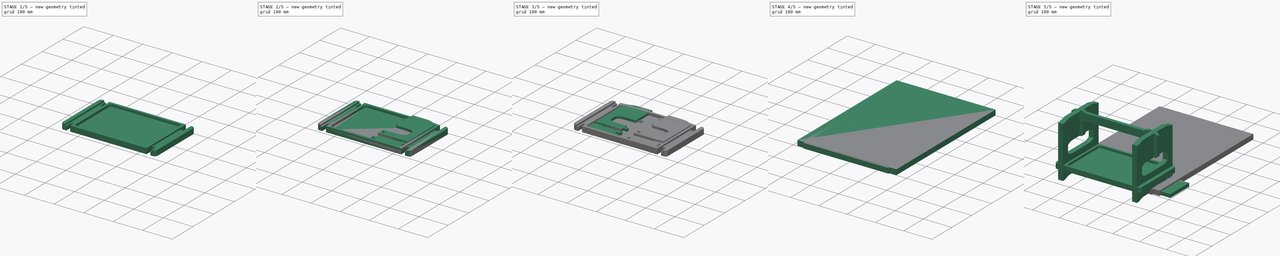
[diagram: build sequence overview — one tinted view per stage of 5, left to right]
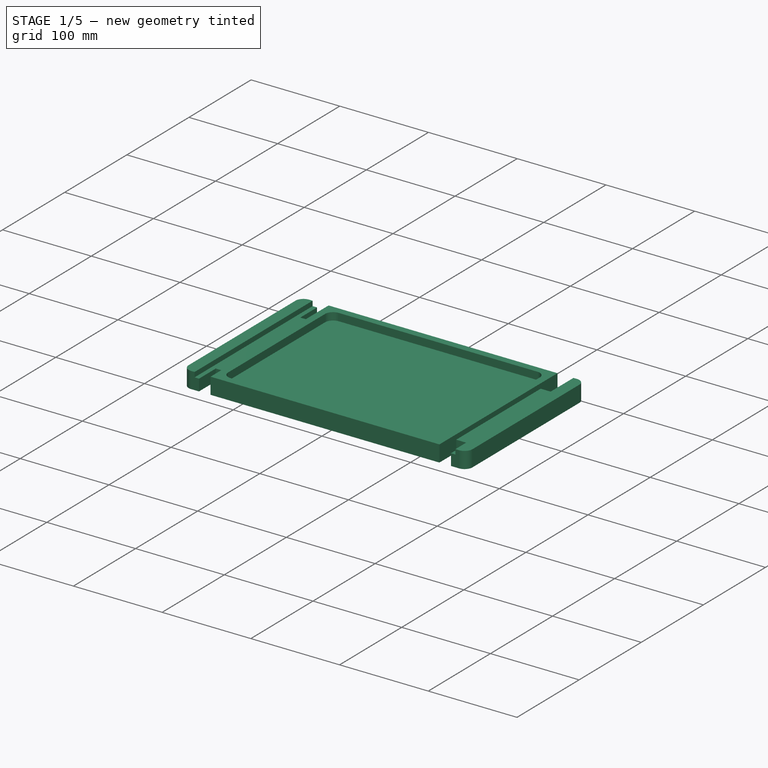
[diagram: stage 1 of 5 — iso view after this stage's code; geometry added in this stage tinted green]
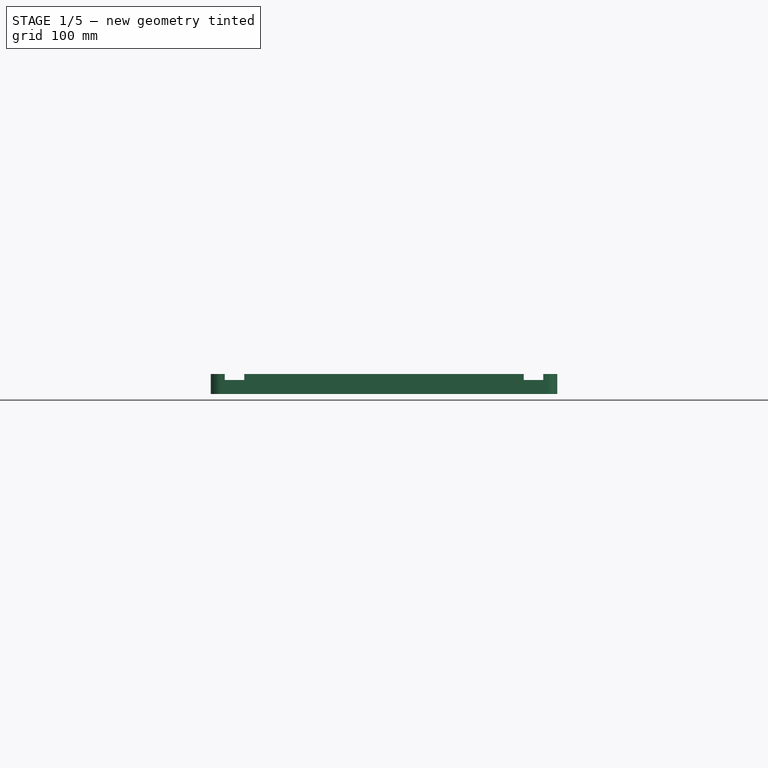
[diagram: stage 1 of 5 — front view after this stage's code; geometry added in this stage tinted green]
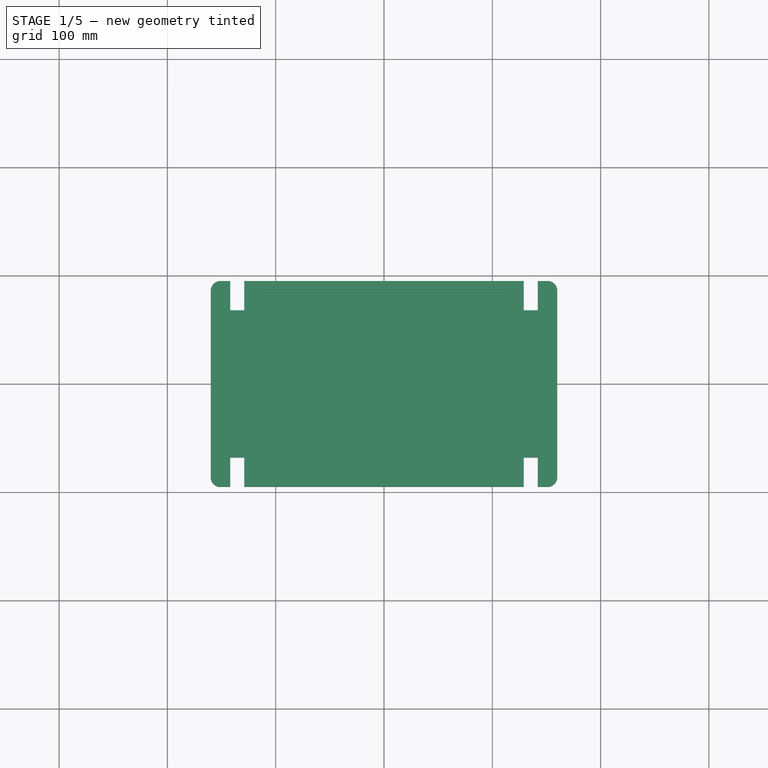
[diagram: stage 1 of 5 — top view after this stage's code; geometry added in this stage tinted green]
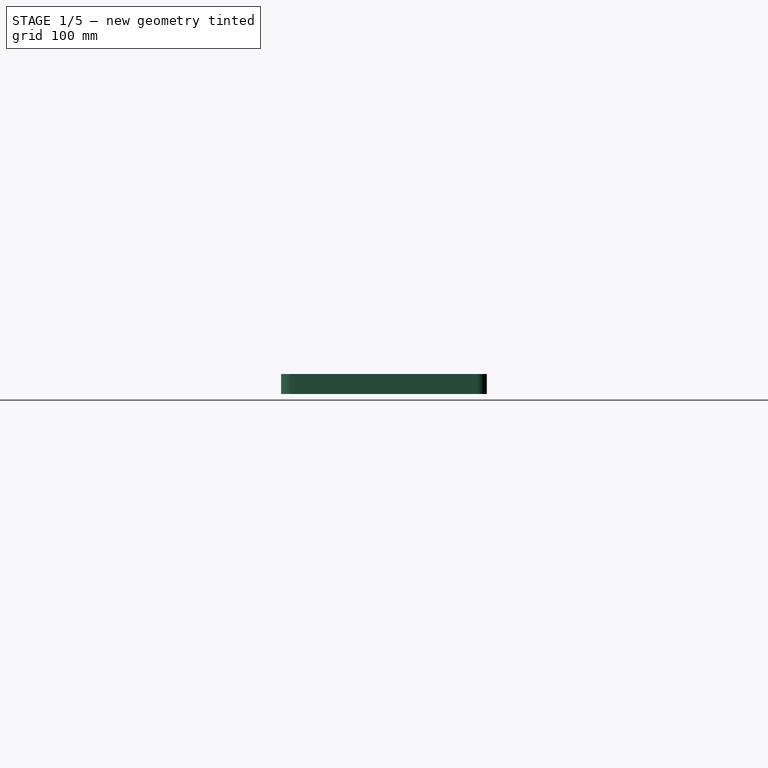
[diagram: stage 1 of 5 — right view after this stage's code; geometry added in this stage tinted green]
FCSTD DOCUMENT  (FreeCAD 0.19R21125 (Git))
Label: StackableTray
License: Creative Commons Attribution-ShareAlike
LicenseURL: http://creativecommons.org/licenses/by-sa/4.0/
objects: Path::FeaturePython×23, Part::FeaturePython×15, Sketcher::SketchObject×11, App::DocumentObjectGroup×7, PartDesign::Pocket×6, Part::Part2DObjectPython×4, PartDesign::Pad×4, PartDesign::Body×4, App::FeaturePython×3, Path::FeatureCompoundPython×3, PartDesign::Mirrored×2, Spreadsheet::Sheet×1, App::Part×1
note: 63 computed .brp shape members not serialized (recipe doc carries the construction recipe); baked Part::Feature solids carry a one-line shape summary decoded from their .brp

FEATURE [PartDesign::Body] Body002  label="Handle_Body"
  Group = -> [Clone2D003,Pad002]
  Origin = -> Origin003
  Tip = -> Pad002
FEATURE [PartDesign::Pad] Pad003
  Length = 18.5
  Length2 = 100
  Profile = -> Clone2D002
  Type = 0
  expr: Length = Spreadsheet.OakThickness
FEATURE [Sketcher::SketchObject] Sketch005
  ExternalGeometry = -> [Pad003]
  MapMode = 5
  Placement = pos=(0,0,18.5) rot=(0,0,1;0rad)
  Support = -> [Pad003]
  expr: Constraints[10] = Spreadsheet.Thickness
  sketch-geometry (4):
    g0: LineSegment StartX=-129 StartY=95 StartZ=0 EndX=-147 EndY=95 EndZ=0
    g1: LineSegment StartX=-147 StartY=95 StartZ=0 EndX=-147 EndY=-95 EndZ=0
    g2: LineSegment StartX=-147 StartY=-95 StartZ=0 EndX=-129 EndY=-95 EndZ=0
    g3: LineSegment StartX=-129 StartY=-95 StartZ=0 EndX=-129 EndY=95 EndZ=0
  constraints (11):
    c: Coincident(g0,g1)
    c: Coincident(g1,g2)
    c: Coincident(g2,g3)
    c: Coincident(g3,g0)
    c: Horizontal(g0)
    c: Horizontal(g2)
    c: Vertical(g1)
    c: Vertical(g3)
    c: Coincident(g0,g-3)
    c: PointOnObject(g1,g-4)
    c: DistanceX(g2,g2) = 18
FEATURE [PartDesign::Pocket] Pocket
  BaseFeature = -> Pad003
  Length = 5.5
  Length2 = 100
  Profile = -> Sketch005
  Type = 0
  expr: Length = Spreadsheet.OakGroove
FEATURE [PartDesign::Mirrored] Mirrored
  BaseFeature = -> Pocket
  MirrorPlane = -> Sketch005 [V_Axis]
  Originals = -> [Pocket]
FEATURE [Sketcher::SketchObject] Sketch006
  ExternalGeometry = -> [Pocket]
  MapMode = 5
  Placement = pos=(0,0,18.5) rot=(0,0,1;0rad)
  Support = -> [Pocket]
  expr: Constraints[13] = 8mm
  sketch-geometry (14):
    g0: LineSegment [constr] StartX=-121 StartY=87 StartZ=0 EndX=121 EndY=87 EndZ=0
    g1: LineSegment [constr] StartX=121 StartY=87 StartZ=0 EndX=121 EndY=-87 EndZ=0
    g2: LineSegment [constr] StartX=121 StartY=-87 StartZ=0 EndX=-121 EndY=-87 EndZ=0
    g3: LineSegment [constr] StartX=-121 StartY=-87 StartZ=0 EndX=-121 EndY=87 EndZ=0
    g4: LineSegment [constr] StartX=-121 StartY=87 StartZ=0 EndX=-121 EndY=95 EndZ=0
    g5: LineSegment [constr] StartX=-121 StartY=87 StartZ=0 EndX=-129 EndY=87 EndZ=0
    g6: LineSegment StartX=-112 StartY=87 StartZ=0 EndX=112 EndY=87 EndZ=0
    g7: LineSegment StartX=121 StartY=78 StartZ=0 EndX=121 EndY=-78 EndZ=0
    g8: LineSegment StartX=112 StartY=-87 StartZ=0 EndX=-112 EndY=-87 EndZ=0
    g9: LineSegment StartX=-121 StartY=-78 StartZ=0 EndX=-121 EndY=78 EndZ=0
    g10: ArcOfCircle CenterX=-112 CenterY=78 CenterZ=0 NormalX=0 NormalY=0 NormalZ=1 AngleXU=0 Radius=9 StartAngle=1.5708 EndAngle=3.14159
    g11: ArcOfCircle CenterX=112 CenterY=78 CenterZ=0 NormalX=0 NormalY=0 NormalZ=1 AngleXU=0 Radius=9 StartAngle=0 EndAngle=1.5708
    g12: ArcOfCircle CenterX=112 CenterY=-78 CenterZ=0 NormalX=0 NormalY=0 NormalZ=1 AngleXU=0 Radius=9 StartAngle=4.71239 EndAngle=6.28319
    g13: ArcOfCircle CenterX=-112 CenterY=-78 CenterZ=0 NormalX=0 NormalY=0 NormalZ=1 AngleXU=0 Radius=9 StartAngle=3.14159 EndAngle=4.71239
  constraints (36):
    c: Coincident(g0,g1)
    c: Coincident(g1,g2)
    c: Coincident(g2,g3)
    c: Coincident(g3,g0)
    c: Horizontal(g2)
    c: Vertical(g3)
    c: Symmetric(g0,g0,g-2)
    c: Symmetric(g1,g0,g-1)
    c: Coincident(g4,g0)
    c: Vertical(g4)
    c: Coincident(g5,g0)
    c: Horizontal(g5)
    c: Equal(g4,g5)
    c: DistanceY(g4,g4) = 8
    c: Tangent(g6,g10) = 1.5708
    c: Tangent(g9,g10) = 1.5708
    c: PointOnObject(g6,g0)
    c: PointOnObject(g9,g3)
    c: Tangent(g6,g11) = 1.5708
    c: Tangent(g7,g11) = 1.5708
    c: Horizontal(g6)
    c: Vertical(g7)
    c: Tangent(g7,g12) = 1.5708
    c: Tangent(g8,g12) = 1.5708
    c: PointOnObject(g7,g1)
    c: PointOnObject(g8,g2)
    c: Tangent(g8,g13) = 1.5708
    c: Tangent(g9,g13) = 1.5708
    c: Horizontal(g8)
    c: Vertical(g9)
    c: Equal(g10,g13)
    c: Equal(g13,g12)
    c: PointOnObject(g4,g-3)
    c: PointOnObject(g5,g-4)
    c: Equal(g13,g-5)
    c: Equal(g11,g10)
FEATURE [PartDesign::Pocket] Pocket001
  BaseFeature = -> Mirrored
  Length = 8.5
  Length2 = 100
  Profile = -> Sketch006
  Type = 0
FEATURE [PartDesign::Mirrored] Mirrored001
  BaseFeature = -> Pocket001
  MirrorPlane = -> Sketch006 [V_Axis]
  Originals = -> [Pocket001]
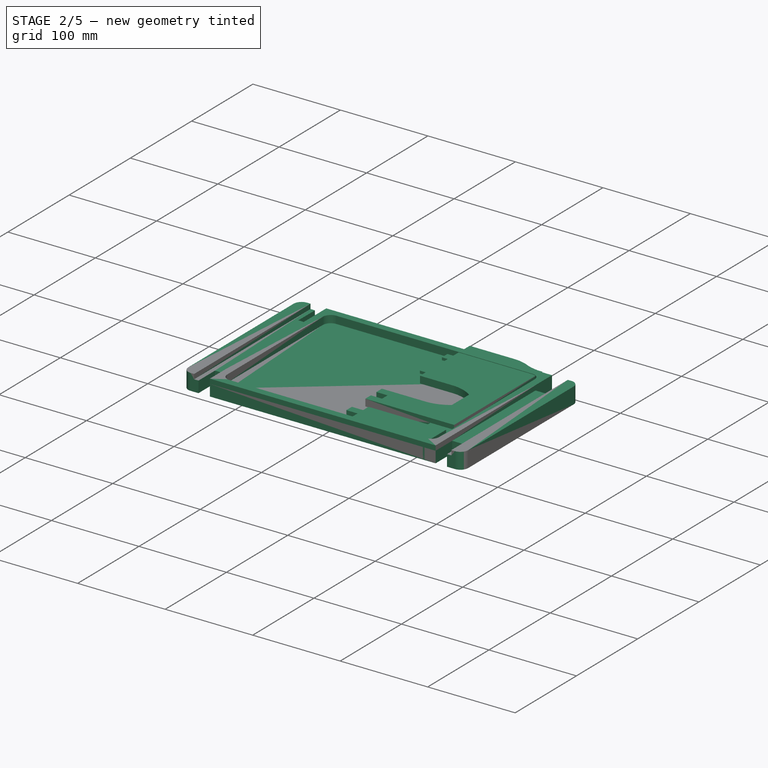
[diagram: stage 2 of 5 — iso view after this stage's code; geometry added in this stage tinted green]
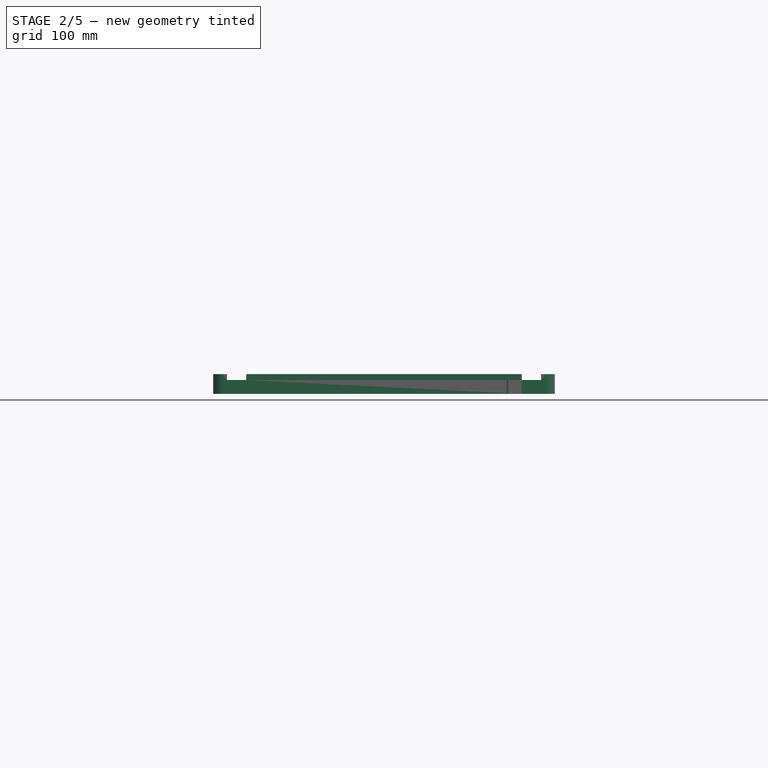
[diagram: stage 2 of 5 — front view after this stage's code; geometry added in this stage tinted green]
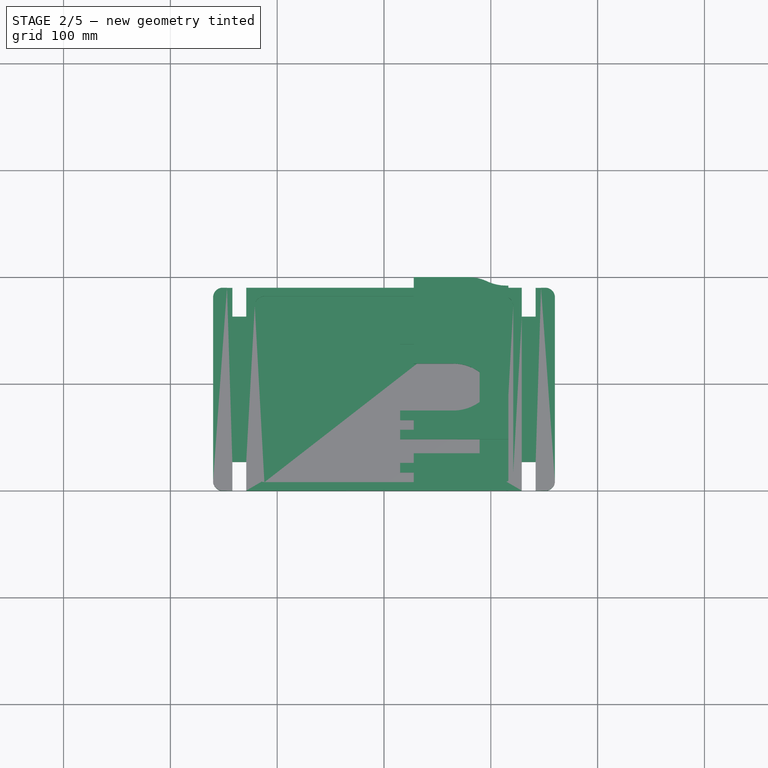
[diagram: stage 2 of 5 — top view after this stage's code; geometry added in this stage tinted green]
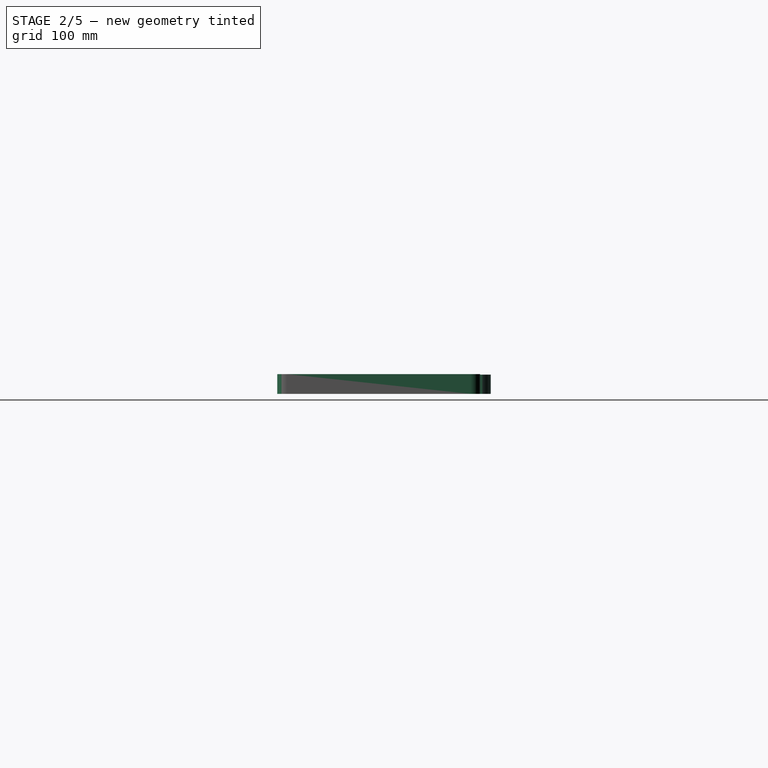
[diagram: stage 2 of 5 — right view after this stage's code; geometry added in this stage tinted green]
FEATURE [Sketcher::SketchObject] Sketch  label="Side_Profile_Plan_Master"
  MapMode = 5
  Placement = pos=(0,0,0) rot=(0.57735,0.57735,0.57735;2.0944rad)
  Support = -> [YZ_Plane001]
  expr: Constraints[186] = Spreadsheet.Thickness - Spreadsheet.Groove
  expr: Constraints[81] = Spreadsheet.Thickness * 2
  expr: Constraints[114] = Spreadsheet.Height
  expr: .Constraints.HandleHole = Spreadsheet.Thickness * 1.5
  expr: Constraints[113] = Spreadsheet.Depth
  expr: Constraints[39] = Spreadsheet.BambooThickness
  sketch-geometry (91):
    g0: LineSegment [constr] StartX=-95 StartY=0 StartZ=0 EndX=-75 EndY=0 EndZ=0
    g1: LineSegment [constr] StartX=-75 StartY=8 StartZ=0 EndX=75 EndY=8 EndZ=0
    g2: LineSegment [constr] StartX=75 StartY=8 StartZ=0 EndX=75 EndY=0 EndZ=0
    g3: LineSegment [constr] StartX=75 StartY=0 StartZ=0 EndX=95 EndY=0 EndZ=0
    g4: LineSegment [constr] StartX=95 StartY=192 StartZ=0 EndX=75 EndY=192 EndZ=0
    g5: LineSegment [constr] StartX=75 StartY=200 StartZ=0 EndX=-75 EndY=200 EndZ=0
    g6: LineSegment [constr] StartX=-75 StartY=192 StartZ=0 EndX=-95 EndY=192 EndZ=0
    g7: LineSegment [constr] StartX=0 StartY=200 StartZ=0 EndX=0 EndY=8 EndZ=0
    g8: LineSegment StartX=-95 StartY=192 StartZ=0 EndX=-93 EndY=192 EndZ=0
    g9: LineSegment StartX=93 StartY=192 StartZ=0 EndX=95 EndY=192 EndZ=0
    g10: LineSegment StartX=95 StartY=0 StartZ=0 EndX=93 EndY=0 EndZ=0
    g11: LineSegment StartX=-93 StartY=0 StartZ=0 EndX=-95 EndY=0 EndZ=0
    g12: ArcOfCircle CenterX=-93 CenterY=234.5 CenterZ=0 NormalX=0 NormalY=0 NormalZ=1 AngleXU=0 Radius=42.5 StartAngle=4.71239 EndAngle=5.14973
    g13: ArcOfCircle CenterX=93 CenterY=234.5 CenterZ=0 NormalX=0 NormalY=0 NormalZ=1 AngleXU=0 Radius=42.5 StartAngle=4.27505 EndAngle=4.71239
    g14: ArcOfCircle CenterX=93 CenterY=42.5 CenterZ=0 NormalX=0 NormalY=0 NormalZ=1 AngleXU=0 Radius=42.5 StartAngle=4.27505 EndAngle=4.71239
    g15: ArcOfCircle CenterX=-93 CenterY=42.5 CenterZ=0 NormalX=0 NormalY=0 NormalZ=1 AngleXU=0 Radius=42.5 StartAngle=4.71239 EndAngle=5.14973
    g16: LineSegment StartX=-6.4 StartY=173 StartZ=0 EndX=6.4 EndY=173 EndZ=0
    g17: LineSegment StartX=6.4 StartY=173 StartZ=0 EndX=6.4 EndY=146 EndZ=0
    g18: LineSegment StartX=6.4 StartY=146 StartZ=0 EndX=-6.4 EndY=146 EndZ=0
    g19: LineSegment StartX=-6.4 StartY=146 StartZ=0 EndX=-6.4 EndY=173 EndZ=0
    g20: LineSegment [constr] StartX=-68 StartY=35 StartZ=0 EndX=-95 EndY=35 EndZ=0
    g21: LineSegment [constr] StartX=-95 StartY=48 StartZ=0 EndX=-68 EndY=48 EndZ=0
    g22: LineSegment StartX=-68 StartY=48 StartZ=0 EndX=-68 EndY=35 EndZ=0
    g23: LineSegment [constr] StartX=68 StartY=35 StartZ=0 EndX=95 EndY=35 EndZ=0
    g24: LineSegment [constr] StartX=95 StartY=48 StartZ=0 EndX=68 EndY=48 EndZ=0
    g25: LineSegment StartX=68 StartY=48 StartZ=0 EndX=68 EndY=35 EndZ=0
    g26: LineSegment StartX=-68 StartY=48 StartZ=0 EndX=68 EndY=48 EndZ=0
    g27: ArcOfCircle CenterX=-57 CenterY=157.5 CenterZ=0 NormalX=0 NormalY=0 NormalZ=1 AngleXU=0 Radius=42.5 StartAngle=1.5708 EndAngle=2.00813
    g28: ArcOfCircle CenterX=57 CenterY=157.5 CenterZ=0 NormalX=0 NormalY=0 NormalZ=1 AngleXU=0 Radius=42.5 StartAngle=1.13346 EndAngle=1.5708
    g29: ArcOfCircle CenterX=-57 CenterY=-34.5 CenterZ=0 NormalX=0 NormalY=0 NormalZ=1 AngleXU=0 Radius=42.5 StartAngle=1.5708 EndAngle=2.00813
    g30: ArcOfCircle CenterX=57 CenterY=-34.5 CenterZ=0 NormalX=0 NormalY=0 NormalZ=1 AngleXU=0 Radius=42.5 StartAngle=1.13346 EndAngle=1.5708
    g31: LineSegment StartX=-57 StartY=8 StartZ=0 EndX=57 EndY=8 EndZ=0
    g32: LineSegment [constr] StartX=75 StartY=200 StartZ=0 EndX=75 EndY=192 EndZ=0
    g33: LineSegment [constr] StartX=-75 StartY=8 StartZ=0 EndX=-75 EndY=0 EndZ=0
    g34: LineSegment [constr] StartX=-75 StartY=200 StartZ=0 EndX=-75 EndY=192 EndZ=0
    g35: LineSegment [constr] StartX=-75 StartY=192 StartZ=0 EndX=-75 EndY=8 EndZ=0
    g36: LineSegment [constr] StartX=6.4 StartY=173 StartZ=0 EndX=6.4 EndY=200 EndZ=0
    g37: LineSegment StartX=-95 StartY=192 StartZ=0 EndX=-95 EndY=48 EndZ=0
    g38: LineSegment StartX=-95 StartY=35 StartZ=0 EndX=-95 EndY=0 EndZ=0
    g39: LineSegment StartX=95 StartY=35 StartZ=0 EndX=95 EndY=0 EndZ=0
    g40: LineSegment StartX=95 StartY=192 StartZ=0 EndX=95 EndY=48 EndZ=0
    g41: LineSegment StartX=-68 StartY=35 StartZ=0 EndX=68 EndY=35 EndZ=0
    g42: LineSegment [constr] StartX=0 StartY=8 StartZ=0 EndX=0 EndY=35 EndZ=0
    g43: LineSegment StartX=-95 StartY=48 StartZ=0 EndX=-95 EndY=35 EndZ=0
    g44: LineSegment StartX=95 StartY=48 StartZ=0 EndX=95 EndY=35 EndZ=0
    g45: LineSegment [constr] StartX=6.4 StartY=146 StartZ=0 EndX=6.4 EndY=8 EndZ=0
    g46: LineSegment [constr] StartX=-6.4 StartY=146 StartZ=0 EndX=-6.4 EndY=8 EndZ=0
    g47: LineSegment StartX=-6.4 StartY=17 StartZ=0 EndX=-6.4 EndY=26 EndZ=0
    g48: LineSegment StartX=6.4 StartY=8 StartZ=0 EndX=6.4 EndY=17 EndZ=0
    g49: LineSegment StartX=6.4 StartY=17 StartZ=0 EndX=-6.4 EndY=17 EndZ=0
    g50: LineSegment StartX=-6.4 StartY=26 StartZ=0 EndX=6.4 EndY=26 EndZ=0
    g51: LineSegment StartX=6.4 StartY=26 StartZ=0 EndX=6.4 EndY=35 EndZ=0
    g52: LineSegment StartX=-6.4 StartY=48 StartZ=0 EndX=-6.4 EndY=57 EndZ=0
    g53: LineSegment StartX=-6.4 StartY=57 StartZ=0 EndX=6.4 EndY=57 EndZ=0
    g54: LineSegment StartX=6.4 StartY=57 StartZ=0 EndX=6.4 EndY=66 EndZ=0
    g55: LineSegment StartX=6.4 StartY=66 StartZ=0 EndX=-6.4 EndY=66 EndZ=0
    g56: LineSegment StartX=-6.4 StartY=66 StartZ=0 EndX=-6.4 EndY=75 EndZ=0
    g57: LineSegment [constr] StartX=-6.4 StartY=173 StartZ=0 EndX=-6.4 EndY=200 EndZ=0
    g58: LineSegment StartX=-6.4 StartY=173 StartZ=0 EndX=-6.4 EndY=182 EndZ=0
    g59: LineSegment StartX=-6.4 StartY=182 StartZ=0 EndX=6.4 EndY=182 EndZ=0
    g60: LineSegment StartX=6.4 StartY=182 StartZ=0 EndX=6.4 EndY=191 EndZ=0
    g61: LineSegment StartX=6.4 StartY=191 StartZ=0 EndX=-6.4 EndY=191 EndZ=0
    g62: LineSegment StartX=-6.4 StartY=191 StartZ=0 EndX=-6.4 EndY=200 EndZ=0
    g63: LineSegment StartX=-6.4 StartY=146 StartZ=0 EndX=-6.4 EndY=137 EndZ=0
    g64: LineSegment StartX=-6.4 StartY=137 StartZ=0 EndX=6.4 EndY=137 EndZ=0
    g65: LineSegment StartX=6.4 StartY=137 StartZ=0 EndX=6.4 EndY=128 EndZ=0
    g66: LineSegment StartX=6.4 StartY=128 StartZ=0 EndX=-6.4 EndY=128 EndZ=0
    g67: LineSegment StartX=-6.4 StartY=128 StartZ=0 EndX=-6.4 EndY=119 EndZ=0
    g68: LineSegment StartX=6.4 StartY=200 StartZ=0 EndX=6.4 EndY=191 EndZ=0
    g69: LineSegment [constr] StartX=-68 StartY=75 StartZ=0 EndX=68 EndY=75 EndZ=0
    g70: LineSegment [constr] StartX=-68 StartY=119 StartZ=0 EndX=68 EndY=119 EndZ=0
    g71: LineSegment [constr] StartX=-68 StartY=119 StartZ=0 EndX=-68 EndY=75 EndZ=0
    g72: LineSegment [constr] StartX=68 StartY=119 StartZ=0 EndX=68 EndY=75 EndZ=0
    g73: LineSegment StartX=6.4 StartY=128 StartZ=0 EndX=6.4 EndY=119 EndZ=0
    g74: LineSegment [constr] StartX=-68 StartY=75 StartZ=0 EndX=-68 EndY=48 EndZ=0
    g75: ArcOfCircle CenterX=-43.1807 CenterY=76.5 CenterZ=0 NormalX=0 NormalY=0 NormalZ=1 AngleXU=0 Radius=42.5 StartAngle=1.5708 EndAngle=2.19443
    g76: ArcOfCircle CenterX=-43.1807 CenterY=117.5 CenterZ=0 NormalX=0 NormalY=0 NormalZ=1 AngleXU=0 Radius=42.5 StartAngle=4.08876 EndAngle=4.71239
    g77: ArcOfCircle CenterX=43.1807 CenterY=76.5 CenterZ=0 NormalX=0 NormalY=0 NormalZ=1 AngleXU=0 Radius=42.5 StartAngle=0.947168 EndAngle=1.5708
    g78: ArcOfCircle CenterX=43.1807 CenterY=117.5 CenterZ=0 NormalX=0 NormalY=0 NormalZ=1 AngleXU=0 Radius=42.5 StartAngle=4.71239 EndAngle=5.33602
    g79: LineSegment [constr] StartX=-43.1807 StartY=119 StartZ=0 EndX=-43.1807 EndY=75 EndZ=0
    g80: LineSegment [constr] StartX=43.1807 StartY=119 StartZ=0 EndX=43.1807 EndY=75 EndZ=0
    g81: LineSegment [constr] StartX=-68 StartY=111 StartZ=0 EndX=68 EndY=111 EndZ=0
    g82: LineSegment [constr] StartX=-24.7903 StartY=119 StartZ=0 EndX=-24.7903 EndY=111 EndZ=0
    g83: LineSegment StartX=-6.4 StartY=119 StartZ=0 EndX=-43.1807 EndY=119 EndZ=0
    g84: LineSegment StartX=-6.4 StartY=75 StartZ=0 EndX=-43.1807 EndY=75 EndZ=0
    g85: LineSegment StartX=-68 StartY=83 StartZ=0 EndX=-68 EndY=111 EndZ=0
    g86: LineSegment StartX=68 StartY=111 StartZ=0 EndX=68 EndY=83 EndZ=0
    g87: LineSegment StartX=43.1807 StartY=119 StartZ=0 EndX=6.4 EndY=119 EndZ=0
    g88: LineSegment StartX=43.1807 StartY=75 StartZ=0 EndX=-6.4 EndY=75 EndZ=0
    g89: LineSegment StartX=-6.4 StartY=200 StartZ=0 EndX=-57 EndY=200 EndZ=0
    g90: LineSegment StartX=6.4 StartY=200 StartZ=0 EndX=57 EndY=200 EndZ=0
  constraints (255):
    c: PointOnObject(g0,g-1)
    c: PointOnObject(g0,g-1)
    c: Coincident(g1,g2)
    c: Vertical(g2)
    c: Coincident(g2,g3)
    c: PointOnObject(g3,g-1)
    c: Horizontal(g4)
    c: Tangent(g6,g4)
    c: Equal(g3,g0)
    c: Symmetric(g2,g0,g-2)
    c: PointOnObject(g7,g5)
    c: Vertical(g7)
    c: PointOnObject(g7,g-2)
    c: Tangent(g8,g12) = -1.5708
    c: Tangent(g9,g13) = -1.5708
    c: Tangent(g10,g14) = 1.5708
    c: Tangent(g11,g15) = 1.5708
    c: Horizontal(g9)
    c: Horizontal(g8)
    c: Horizontal(g10)
    c: Horizontal(g11)
    c: Equal(g12,g13)
    c: Equal(g12,g15)
    c: Equal(g15,g14)
    c: Coincident(g16,g17)
    c: Coincident(g17,g18)
    c: Coincident(g18,g19)
    c: Coincident(g19,g16)
    c: Horizontal(g18)
    c: Vertical(g17)
    c: Vertical(g19)
    c: Coincident(g21,g22)
    c: Coincident(g22,g20)
    c: Horizontal(g21)
    c: Vertical(g22)
    c: Coincident(g24,g25)
    c: Coincident(g25,g23)
    c: Horizontal(g24)
    c: Vertical(g25)
    c: DistanceX(g16,g16) = 12.8
    c: Equal(g21,g24)
    c: Symmetric(g24,g21,g-2)
    c: Symmetric(g16,g16,g-2)
    c: DistanceY(g17,g17) = 27  'HandleHole'
    c: Coincident(g26,g21)
    c: Coincident(g26,g24)
    c: Horizontal(g1)
    c: Horizontal(g20)
    c: Horizontal(g23)
    c: Symmetric(g5,g5,g-2)
    c: Tangent(g27,g12) = 1.5708
    c: Tangent(g28,g13) = 1.5708
    c: Tangent(g28,g5)
    c: Equal(g27,g12)
    c: Equal(g8,g11)
    c: Equal(g11,g10)
    c: Equal(g14,g30)
    c: Tangent(g29,g15) = 1.5708
    c: Tangent(g31,g29) = 1.5708
    c: Tangent(g30,g14) = 1.5708
    c: Tangent(g31,g30) = 1.5708
    c: Horizontal(g31)
    c: PointOnObject(g29,g1)
    c: Equal(g13,g28)
    c: Coincident(g32,g5)
    c: Coincident(g4,g32)
    c: PointOnObject(g7,g1)
    c: Coincident(g33,g1)
    c: Coincident(g33,g0)
    c: Vertical(g33)
    c: Equal(g15,g29)
    c: DistanceY(g33,g33) = 8
    c: PointOnObject(g14,g2)
    c: Vertical(g32)
    c: Coincident(g34,g5)
    c: Coincident(g34,g6)
    c: Vertical(g34)
    c: PointOnObject(g12,g34)
    c: Coincident(g35,g6)
    c: Coincident(g35,g1)
    c: PointOnObject(g13,g32)
    c: DistanceX(g11,g29) = 36
    c: DistanceX(g0,g0) = 20
    c: Coincident(g36,g16)
    c: Vertical(g36)
    c: Equal(g17,g36)
    c: Coincident(g37,g8)
    c: Coincident(g37,g21)
    c: Coincident(g38,g20)
    c: Coincident(g38,g11)
    c: Coincident(g39,g23)
    c: Coincident(g39,g10)
    c: Coincident(g40,g9)
    c: Coincident(g40,g24)
    c: Coincident(g41,g20)
    c: Coincident(g41,g23)
    c: Coincident(g42,g7)
    c: Vertical(g42)
    c: PointOnObject(g42,g41)
    c: Coincident(g43,g37)
    c: Coincident(g43,g38)
    c: Vertical(g43)
    c: Coincident(g44,g40)
    c: Coincident(g44,g39)
    c: Vertical(g44)
    c: Vertical(g35)
    c: Vertical(g38)
    c: Vertical(g37)
    c: Coincident(g0,g11)
    c: Vertical(g40)
    c: Coincident(g10,g3)
    c: Coincident(g6,g8)
    c: Coincident(g4,g9)
    c: DistanceX(g8,g9) = 190
    c: DistanceY(g10,g28) = 200
    c: Equal(g19,g21)
    c: Coincident(g45,g17)
    c: PointOnObject(g45,g31)
    c: Vertical(g45)
    c: Coincident(g46,g18)
    c: PointOnObject(g46,g31)
    c: Vertical(g46)
    c: PointOnObject(g47,g46)
    c: PointOnObject(g47,g46)
    c: Coincident(g45,g48)
    c: PointOnObject(g48,g45)
    c: Coincident(g48,g49)
    c: Coincident(g49,g47)
    c: Horizontal(g49)
    c: Coincident(g47,g50)
    c: PointOnObject(g50,g45)
    c: Horizontal(g50)
    c: Coincident(g50,g51)
    c: PointOnObject(g51,g41)
    c: Vertical(g51)
    c: Equal(g48,g47)
    c: Equal(g47,g51)
    c: PointOnObject(g52,g26)
    c: PointOnObject(g52,g46)
    c: Coincident(g52,g53)
    c: PointOnObject(g53,g45)
    c: Horizontal(g53)
    c: Coincident(g53,g54)
    c: PointOnObject(g54,g45)
    c: Coincident(g54,g55)
    c: PointOnObject(g55,g46)
    c: Horizontal(g55)
    c: Coincident(g55,g56)
    c: Vertical(g56)
    c: Vertical(g52)
    c: Equal(g52,g54)
    c: Equal(g54,g56)
    c: Coincident(g57,g16)
    c: Vertical(g57)
    c: Coincident(g16,g58)
    c: PointOnObject(g58,g57)
    c: Coincident(g58,g59)
    c: PointOnObject(g59,g36)
    c: Horizontal(g59)
    c: Coincident(g59,g60)
    c: PointOnObject(g60,g36)
    c: Coincident(g60,g61)
    c: Horizontal(g61)
    c: Coincident(g61,g62)
    c: Coincident(g62,g57)
    c: Vertical(g62)
    c: Equal(g58,g60)
    c: Equal(g60,g62)
    c: Coincident(g18,g63)
    c: PointOnObject(g63,g46)
    c: Coincident(g63,g64)
    c: PointOnObject(g64,g45)
    c: Horizontal(g64)
    c: Coincident(g64,g65)
    c: PointOnObject(g65,g45)
    c: Coincident(g65,g66)
    c: PointOnObject(g66,g46)
    c: Horizontal(g66)
    c: Coincident(g66,g67)
    c: PointOnObject(g67,g46)
    c: Equal(g67,g65)
    c: Equal(g65,g63)
    c: Coincident(g68,g36)
    c: Coincident(g68,g60)
    c: Equal(g22,g25)
    c: Equal(g51,g52)
    c: DistanceY(g22,g22) = 13
    c: Equal(g63,g58)
    c: Horizontal(g69)
    c: Horizontal(g70)
    c: Coincident(g71,g70)
    c: Coincident(g71,g69)
    c: Vertical(g71)
    c: Coincident(g72,g70)
    c: Coincident(g72,g69)
    c: Vertical(g72)
    c: PointOnObject(g67,g70)
    c: Coincident(g73,g65)
    c: PointOnObject(g73,g45)
    c: PointOnObject(g73,g70)
    c: Equal(g69,g26)
    c: PointOnObject(g56,g69)
    c: Coincident(g74,g69)
    c: Coincident(g74,g22)
    c: Vertical(g74)
    c: Equal(g67,g56)
    c: PointOnObject(g75,g71)
    c: PointOnObject(g76,g71)
    c: PointOnObject(g77,g72)
    c: PointOnObject(g78,g72)
    c: Equal(g13,g77)
    c: Equal(g77,g78)
    c: Equal(g78,g76)
    c: Equal(g76,g75)
    c: Tangent(g75,g70) = 1.5708
    c: Tangent(g76,g69) = -1.5708
    c: Tangent(g77,g70) = 1.5708
    c: Tangent(g78,g69) = -1.5708
    c: Coincident(g79,g75)
    c: Coincident(g79,g76)
    c: Vertical(g79)
    c: Coincident(g80,g77)
    c: Coincident(g80,g78)
    c: Vertical(g80)
    c: Coincident(g81,g75)
    c: Coincident(g81,g77)
    c: Horizontal(g81)
    c: PointOnObject(g82,g70)
    c: PointOnObject(g82,g81)
    c: Equal(g34,g82)
    c: Symmetric(g67,g75,g82)
    c: Coincident(g83,g67)
    c: Coincident(g83,g75)
    c: Coincident(g84,g56)
    c: Coincident(g84,g76)
    c: Coincident(g85,g76)
    c: Coincident(g85,g75)
    c: Coincident(g86,g77)
    c: Coincident(g86,g78)
    c: Coincident(g87,g77)
    c: Coincident(g87,g73)
    c: Coincident(g88,g78)
    c: Coincident(g88,g56)
    c: Coincident(g89,g62)
    c: Coincident(g89,g27)
    c: Horizontal(g89)
    c: Coincident(g90,g68)
    c: Coincident(g90,g28)
    c: Horizontal(g90)
    c: Tangent(g28,g90) = 1.5708
    c: Tangent(g27,g89) = -1.5708
    c: PointOnObject(g62,g5)
    c: DistanceY(g73,g68) = 81  'HandleSupportHeight'
    c: DistanceY(g68,g68) = 9  'HandleGroove'
    c: DistanceX(g21,g21) = 27  'TrayBayLength'
FEATURE [Spreadsheet::Sheet] Spreadsheet
  cells = A1=Thickness; B1(Thickness)=18; A2=Depth; B2(Depth)=190; A3=Width; B3(Width)=320; A4=Height; B4(Height)=200; A5=Groove; B5(Groove)=5; A6=BambooThickness; B6(BambooThickness)=12.8; A7=OakThickness; B7(OakThickness)=18.5; A8=OakGroove; B8(OakGroove)==OakThickness - Thickness + Groove
FEATURE [Sketcher::SketchObject] Sketch001  label="Side_Profile_Right_Half_Master"
  ExternalGeometry = -> [Sketch]
  MapMode = 2
  Placement = pos=(0,0,0) rot=(0.57735,0.57735,0.57735;2.0944rad)
  Support = -> [Sketch]
  sketch-geometry (36):
    g0: LineSegment StartX=95 StartY=192 StartZ=0 EndX=95 EndY=0 EndZ=0
    g1: ArcOfCircle CenterX=93 CenterY=42.5 CenterZ=0 NormalX=0 NormalY=0 NormalZ=1 AngleXU=0 Radius=42.5 StartAngle=4.27505 EndAngle=4.71239
    g2: ArcOfCircle CenterX=57 CenterY=-34.5 CenterZ=0 NormalX=0 NormalY=0 NormalZ=1 AngleXU=0 Radius=42.5 StartAngle=1.13346 EndAngle=1.5708
    g3: ArcOfCircle CenterX=43.1807 CenterY=117.5 CenterZ=0 NormalX=0 NormalY=0 NormalZ=1 AngleXU=0 Radius=42.5 StartAngle=4.71239 EndAngle=5.33602
    g4: ArcOfCircle CenterX=43.1807 CenterY=76.5 CenterZ=0 NormalX=0 NormalY=0 NormalZ=1 AngleXU=0 Radius=42.5 StartAngle=0.947168 EndAngle=1.5708
    g5: ArcOfCircle CenterX=57 CenterY=157.5 CenterZ=0 NormalX=0 NormalY=0 NormalZ=1 AngleXU=0 Radius=42.5 StartAngle=1.13346 EndAngle=1.5708
    g6: ArcOfCircle CenterX=93 CenterY=234.5 CenterZ=0 NormalX=0 NormalY=0 NormalZ=1 AngleXU=0 Radius=42.5 StartAngle=4.27505 EndAngle=4.71239
    g7: LineSegment StartX=93 StartY=192 StartZ=0 EndX=95 EndY=192 EndZ=0
    g8: LineSegment StartX=6.4 StartY=17 StartZ=0 EndX=6.4 EndY=8 EndZ=0
    g9: LineSegment StartX=6.4 StartY=8 StartZ=0 EndX=57 EndY=8 EndZ=0
    g10: LineSegment StartX=68 StartY=35 StartZ=0 EndX=6.4 EndY=35 EndZ=0
    g11: LineSegment StartX=6.4 StartY=35 StartZ=0 EndX=6.4 EndY=26 EndZ=0
    g12: LineSegment StartX=6.4 StartY=26 StartZ=0 EndX=-6.4 EndY=26 EndZ=0
    g13: LineSegment StartX=-6.4 StartY=26 StartZ=0 EndX=-6.4 EndY=17 EndZ=0
    g14: LineSegment StartX=-6.4 StartY=17 StartZ=0 EndX=6.4 EndY=17 EndZ=0
    g15: LineSegment StartX=68 StartY=35 StartZ=0 EndX=68 EndY=48 EndZ=0
    g16: LineSegment StartX=68 StartY=48 StartZ=0 EndX=-6.4 EndY=48 EndZ=0
    g17: LineSegment StartX=-6.4 StartY=48 StartZ=0 EndX=-6.4 EndY=57 EndZ=0
    g18: LineSegment StartX=-6.4 StartY=57 StartZ=0 EndX=6.4 EndY=57 EndZ=0
    g19: LineSegment StartX=6.4 StartY=57 StartZ=0 EndX=6.4 EndY=66 EndZ=0
    g20: LineSegment StartX=6.4 StartY=66 StartZ=0 EndX=-6.4 EndY=66 EndZ=0
    g21: LineSegment StartX=-6.4 StartY=66 StartZ=0 EndX=-6.4 EndY=75 EndZ=0
    g22: LineSegment StartX=-6.4 StartY=75 StartZ=0 EndX=43.1807 EndY=75 EndZ=0
    g23: LineSegment StartX=68 StartY=83 StartZ=0 EndX=68 EndY=111 EndZ=0
    g24: LineSegment StartX=43.1807 StartY=119 StartZ=0 EndX=6.4 EndY=119 EndZ=0
    g25: LineSegment StartX=6.4 StartY=119 StartZ=0 EndX=6.4 EndY=137 EndZ=0
    g26: LineSegment StartX=6.4 StartY=137 StartZ=0 EndX=-6.4 EndY=137 EndZ=0
    g27: LineSegment StartX=-6.4 StartY=137 StartZ=0 EndX=-6.4 EndY=146 EndZ=0
    g28: LineSegment StartX=-6.4 StartY=146 StartZ=0 EndX=6.4 EndY=146 EndZ=0
    g29: LineSegment StartX=6.4 StartY=146 StartZ=0 EndX=6.4 EndY=173 EndZ=0
    g30: LineSegment StartX=6.4 StartY=173 StartZ=0 EndX=-6.4 EndY=173 EndZ=0
    g31: LineSegment StartX=-6.4 StartY=173 StartZ=0 EndX=-6.4 EndY=182 EndZ=0
    g32: LineSegment StartX=-6.4 StartY=182 StartZ=0 EndX=6.4 EndY=182 EndZ=0
    g33: LineSegment StartX=6.4 StartY=182 StartZ=0 EndX=6.4 EndY=200 EndZ=0
    g34: LineSegment StartX=6.4 StartY=200 StartZ=0 EndX=57 EndY=200 EndZ=0
    g35: LineSegment StartX=93 StartY=1.85878e-11 StartZ=0 EndX=95 EndY=0 EndZ=0
  constraints (84):
    c: Coincident(g-7,g0)
    c: Coincident(g0,g-8)
    c: Coincident(g1,g-5)
    c: Coincident(g1,g-8)
    c: Coincident(g1,g-6)
    c: Coincident(g2,g-6)
    c: Coincident(g2,g-6)
    c: Coincident(g2,g1)
    c: Coincident(g3,g-14)
    c: Coincident(g3,g-14)
    c: Coincident(g3,g-14)
    c: Coincident(g4,g-15)
    c: Coincident(g4,g-15)
    c: Coincident(g4,g-15)
    c: Coincident(g5,g-4)
    c: Coincident(g5,g-4)
    c: Coincident(g5,g-4)
    c: Coincident(g6,g-3)
    c: Coincident(g6,g5)
    c: Coincident(g6,g-7)
    c: Coincident(g7,g6)
    c: Coincident(g7,g0)
    c: Coincident(g-9,g8)
    c: Vertical(g8)
    c: Coincident(g8,g9)
    c: Coincident(g9,g2)
    c: Horizontal(g9)
    c: Horizontal(g10)
    c: Coincident(g10,g11)
    c: Coincident(g11,g-10)
    c: Vertical(g11)
    c: Coincident(g10,g-11)
    c: Coincident(g11,g12)
    c: Coincident(g12,g-10)
    c: Coincident(g12,g13)
    c: Coincident(g13,g-9)
    c: Coincident(g13,g14)
    c: Coincident(g14,g8)
    c: Coincident(g10,g15)
    c: Coincident(g15,g-11)
    c: Coincident(g15,g16)
    c: Horizontal(g16)
    c: Coincident(g16,g17)
    c: Coincident(g17,g-12)
    c: Vertical(g17)
    c: Coincident(g17,g18)
    c: Coincident(g18,g-12)
    c: Coincident(g18,g19)
    c: Coincident(g19,g-13)
    c: Coincident(g19,g20)
    c: Coincident(g20,g-13)
    c: Coincident(g20,g21)
    c: Vertical(g21)
    c: Coincident(g21,g22)
    c: Coincident(g22,g3)
    c: Horizontal(g22)
    c: Coincident(g23,g3)
    c: Coincident(g23,g4)
    c: Tangent(g4,g24) = -1.5708
    c: Coincident(g24,g25)
    c: Coincident(g25,g-16)
    c: Vertical(g25)
    c: Coincident(g25,g26)
    c: Coincident(g26,g-16)
    c: Coincident(g26,g27)
    c: Coincident(g27,g-17)
    c: Coincident(g27,g28)
    c: Horizontal(g28)
    c: Coincident(g28,g29)
    c: Coincident(g29,g-18)
    c: Vertical(g29)
    c: Coincident(g29,g30)
    c: Coincident(g30,g-18)
    c: Coincident(g30,g31)
    c: Coincident(g31,g-19)
    c: Coincident(g31,g32)
    c: Coincident(g32,g-19)
    c: Coincident(g32,g33)
    c: Vertical(g33)
    c: Coincident(g33,g34)
    c: Coincident(g34,g5)
    c: Horizontal(g34)
    c: Coincident(g35,g1)
    c: Coincident(g35,g0)
FEATURE [Sketcher::SketchObject] Sketch002  label="Side_Profile_Left_Half_Master"
  ExternalGeometry = -> [Sketch]
  MapMode = 2
  Placement = pos=(0,0,0) rot=(0.57735,0.57735,0.57735;2.0944rad)
  Support = -> [Sketch]
  sketch-geometry (36):
    g0: ArcOfCircle CenterX=-93 CenterY=234.5 CenterZ=0 NormalX=0 NormalY=0 NormalZ=1 AngleXU=0 Radius=42.5 StartAngle=4.71239 EndAngle=5.14973
    g1: ArcOfCircle CenterX=-57 CenterY=157.5 CenterZ=0 NormalX=0 NormalY=0 NormalZ=1 AngleXU=0 Radius=42.5 StartAngle=1.5708 EndAngle=2.00813
    g2: ArcOfCircle CenterX=-43.1807 CenterY=76.5 CenterZ=0 NormalX=0 NormalY=0 NormalZ=1 AngleXU=0 Radius=42.5 StartAngle=1.5708 EndAngle=2.19443
    g3: ArcOfCircle CenterX=-43.1807 CenterY=117.5 CenterZ=0 NormalX=0 NormalY=0 NormalZ=1 AngleXU=0 Radius=42.5 StartAngle=4.08876 EndAngle=4.71239
    g4: ArcOfCircle CenterX=-93 CenterY=42.5 CenterZ=0 NormalX=0 NormalY=0 NormalZ=1 AngleXU=0 Radius=42.5 StartAngle=4.71239 EndAngle=5.14973
    g5: ArcOfCircle CenterX=-57 CenterY=-34.5 CenterZ=0 NormalX=0 NormalY=0 NormalZ=1 AngleXU=0 Radius=42.5 StartAngle=1.5708 EndAngle=2.00813
    g6: LineSegment StartX=-95 StartY=192 StartZ=0 EndX=-95 EndY=0 EndZ=0
    g7: LineSegment StartX=-57 StartY=8 StartZ=0 EndX=6.4 EndY=8 EndZ=0
    g8: LineSegment StartX=6.4 StartY=8 StartZ=0 EndX=6.4 EndY=17 EndZ=0
    g9: LineSegment StartX=6.4 StartY=17 StartZ=0 EndX=-6.4 EndY=17 EndZ=0
    g10: LineSegment StartX=-6.4 StartY=17 StartZ=0 EndX=-6.4 EndY=26 EndZ=0
    g11: LineSegment StartX=-6.4 StartY=26 StartZ=0 EndX=6.4 EndY=26 EndZ=0
    g12: LineSegment StartX=6.4 StartY=26 StartZ=0 EndX=6.4 EndY=35 EndZ=0
    g13: LineSegment StartX=6.4 StartY=35 StartZ=0 EndX=-68 EndY=35 EndZ=0
    g14: LineSegment StartX=-68 StartY=35 StartZ=0 EndX=-68 EndY=48 EndZ=0
    g15: LineSegment StartX=-68 StartY=48 StartZ=0 EndX=-6.4 EndY=48 EndZ=0
    g16: LineSegment StartX=-6.4 StartY=48 StartZ=0 EndX=-6.4 EndY=57 EndZ=0
    g17: LineSegment StartX=-6.4 StartY=57 StartZ=0 EndX=6.4 EndY=57 EndZ=0
    g18: LineSegment StartX=6.4 StartY=57 StartZ=0 EndX=6.4 EndY=66 EndZ=0
    g19: LineSegment StartX=6.4 StartY=66 StartZ=0 EndX=-6.4 EndY=66 EndZ=0
    g20: LineSegment StartX=-6.4 StartY=66 StartZ=0 EndX=-6.4 EndY=75 EndZ=0
    g21: LineSegment StartX=-6.4 StartY=75 StartZ=0 EndX=-43.1807 EndY=75 EndZ=0
    g22: LineSegment StartX=-68 StartY=83 StartZ=0 EndX=-68 EndY=111 EndZ=0
    g23: LineSegment StartX=-43.1807 StartY=119 StartZ=0 EndX=-6.4 EndY=119 EndZ=0
    g24: LineSegment StartX=-6.4 StartY=119 StartZ=0 EndX=-6.4 EndY=128 EndZ=0
    g25: LineSegment StartX=-6.4 StartY=128 StartZ=0 EndX=6.4 EndY=128 EndZ=0
    g26: LineSegment StartX=6.4 StartY=128 StartZ=0 EndX=6.4 EndY=137 EndZ=0
    g27: LineSegment StartX=6.4 StartY=137 StartZ=0 EndX=-6.4 EndY=137 EndZ=0
    g28: LineSegment StartX=-6.4 StartY=137 StartZ=0 EndX=-6.4 EndY=182 EndZ=0
    g29: LineSegment StartX=-6.4 StartY=182 StartZ=0 EndX=6.4 EndY=182 EndZ=0
    g30: LineSegment StartX=6.4 StartY=182 StartZ=0 EndX=6.4 EndY=191 EndZ=0
    g31: LineSegment StartX=6.4 StartY=191 StartZ=0 EndX=-6.4 EndY=191 EndZ=0
    g32: LineSegment StartX=-6.4 StartY=191 StartZ=0 EndX=-6.4 EndY=200 EndZ=0
    g33: LineSegment StartX=-6.4 StartY=200 StartZ=0 EndX=-57 EndY=200 EndZ=0
    g34: LineSegment StartX=-95 StartY=192 StartZ=0 EndX=-93 EndY=192 EndZ=0
    g35: LineSegment StartX=-95 StartY=0 StartZ=0 EndX=-93 EndY=1.42e-14 EndZ=0
  constraints (82):
    c: Coincident(g0,g-4)
    c: Coincident(g0,g-4)
    c: Coincident(g0,g-5)
    c: Coincident(g1,g-5)
    c: Coincident(g1,g0)
    c: Coincident(g1,g-5)
    c: Coincident(g2,g-6)
    c: Coincident(g2,g-6)
    c: Coincident(g2,g-6)
    c: Coincident(g3,g-7)
    c: Coincident(g3,g-7)
    c: Coincident(g3,g-7)
    c: Coincident(g4,g-9)
    c: Coincident(g4,g-9)
    c: Coincident(g4,g-10)
    c: Coincident(g5,g-10)
    c: Coincident(g5,g4)
    c: Coincident(g5,g-10)
    c: Coincident(g-3,g6)
    c: Coincident(g6,g-8)
    c: Tangent(g5,g7) = 1.5708
    c: Coincident(g7,g8)
    c: Coincident(g8,g-11)
    c: Vertical(g8)
    c: Coincident(g8,g9)
    c: Coincident(g9,g-11)
    c: Coincident(g9,g10)
    c: Coincident(g10,g-12)
    c: Coincident(g10,g11)
    c: Coincident(g11,g-12)
    c: Coincident(g11,g12)
    c: Vertical(g12)
    c: Coincident(g12,g13)
    c: Horizontal(g13)
    c: Coincident(g13,g14)
    c: Coincident(g14,g15)
    c: Horizontal(g15)
    c: Coincident(g15,g16)
    c: Coincident(g16,g-13)
    c: Vertical(g16)
    c: Coincident(g16,g17)
    c: Coincident(g17,g-13)
    c: Coincident(g17,g18)
    c: Coincident(g18,g-14)
    c: Coincident(g18,g19)
    c: Coincident(g19,g-14)
    c: Coincident(g19,g20)
    c: Vertical(g20)
    c: Coincident(g20,g21)
    c: Coincident(g21,g3)
    c: Horizontal(g21)
    c: Coincident(g14,g-19)
    c: Coincident(g13,g-19)
    c: Coincident(g22,g3)
    c: Coincident(g22,g2)
    c: Tangent(g2,g23) = 1.5708
    c: Coincident(g23,g24)
    c: Coincident(g24,g-15)
    c: Vertical(g24)
    c: Coincident(g24,g25)
    c: Coincident(g25,g-15)
    c: Coincident(g25,g26)
    c: Coincident(g26,g-16)
    c: Coincident(g26,g27)
    c: Coincident(g27,g-16)
    c: Coincident(g27,g28)
    c: Coincident(g28,g-17)
    c: Coincident(g28,g29)
    c: Coincident(g29,g-17)
    c: Coincident(g29,g30)
    c: Coincident(g30,g-18)
    c: Coincident(g30,g31)
    c: Coincident(g31,g-18)
    c: Coincident(g31,g32)
    c: Vertical(g32)
    c: Coincident(g32,g33)
    c: Coincident(g33,g1)
    c: Horizontal(g33)
    c: Coincident(g34,g6)
    c: Coincident(g34,g0)
    c: Coincident(g35,g6)
    c: Coincident(g35,g4)
FEATURE [Sketcher::SketchObject] Sketch003  label="Tray_Profile_Bottom_Master"
  expr: Constraints[81] = Spreadsheet.Thickness
  expr: Constraints[80] = Spreadsheet.Thickness
  expr: Constraints[77] = Spreadsheet.Depth
  expr: Constraints[70] = <<Side_Profile_Plan_Master>>.Constraints.TrayBayLength
  expr: Constraints[20] = Spreadsheet.Thickness - Spreadsheet.Groove
  expr: Constraints[8] = Spreadsheet.Width
  sketch-geometry (32):
    g0: LineSegment [constr] StartX=-160 StartY=95 StartZ=0 EndX=160 EndY=95 EndZ=0
    g1: LineSegment [constr] StartX=160 StartY=95 StartZ=0 EndX=160 EndY=-95 EndZ=0
    g2: LineSegment [constr] StartX=160 StartY=-95 StartZ=0 EndX=-160 EndY=-95 EndZ=0
    g3: LineSegment [constr] StartX=-160 StartY=-95 StartZ=0 EndX=-160 EndY=95 EndZ=0
    g4: LineSegment [constr] StartX=-142 StartY=95 StartZ=0 EndX=-142 EndY=-95 EndZ=0
    g5: LineSegment [constr] StartX=-129 StartY=95 StartZ=0 EndX=-129 EndY=-95 EndZ=0
    g6: LineSegment [constr] StartX=142 StartY=95 StartZ=0 EndX=142 EndY=-95 EndZ=0
    g7: LineSegment [constr] StartX=129 StartY=95 StartZ=0 EndX=129 EndY=-95 EndZ=0
    g8: LineSegment StartX=160 StartY=86 StartZ=0 EndX=160 EndY=-86 EndZ=0
    g9: LineSegment StartX=-160 StartY=-86 StartZ=0 EndX=-160 EndY=86 EndZ=0
    g10: ArcOfCircle CenterX=-151 CenterY=86 CenterZ=0 NormalX=0 NormalY=0 NormalZ=1 AngleXU=0 Radius=9 StartAngle=1.5708 EndAngle=3.14159
    g11: ArcOfCircle CenterX=-151 CenterY=-86 CenterZ=0 NormalX=0 NormalY=0 NormalZ=1 AngleXU=0 Radius=9 StartAngle=3.14159 EndAngle=4.71239
    g12: ArcOfCircle CenterX=151 CenterY=-86 CenterZ=0 NormalX=0 NormalY=0 NormalZ=1 AngleXU=0 Radius=9 StartAngle=4.71239 EndAngle=6.28319
    g13: ArcOfCircle CenterX=151 CenterY=86 CenterZ=0 NormalX=0 NormalY=0 NormalZ=1 AngleXU=0 Radius=9 StartAngle=-9e-16 EndAngle=1.5708
    g14: LineSegment StartX=-151 StartY=95 StartZ=0 EndX=-142 EndY=95 EndZ=0
    g15: LineSegment StartX=-142 StartY=95 StartZ=0 EndX=-142 EndY=68 EndZ=0
    g16: LineSegment StartX=-142 StartY=68 StartZ=0 EndX=-129 EndY=68 EndZ=0
    g17: LineSegment StartX=-129 StartY=68 StartZ=0 EndX=-129 EndY=95 EndZ=0
    g18: LineSegment StartX=-129 StartY=95 StartZ=0 EndX=129 EndY=95 EndZ=0
    g19: LineSegment StartX=129 StartY=95 StartZ=0 EndX=129 EndY=68 EndZ=0
    g20: LineSegment StartX=129 StartY=68 StartZ=0 EndX=142 EndY=68 EndZ=0
    g21: LineSegment StartX=142 StartY=68 StartZ=0 EndX=142 EndY=95 EndZ=0
    g22: LineSegment StartX=142 StartY=95 StartZ=0 EndX=151 EndY=95 EndZ=0
    g23: LineSegment StartX=-151 StartY=-95 StartZ=0 EndX=-142 EndY=-95 EndZ=0
    g24: LineSegment StartX=-142 StartY=-95 StartZ=0 EndX=-142 EndY=-68 EndZ=0
    g25: LineSegment StartX=-142 StartY=-68 StartZ=0 EndX=-129 EndY=-68 EndZ=0
    g26: LineSegment StartX=-129 StartY=-68 StartZ=0 EndX=-129 EndY=-95 EndZ=0
    g27: LineSegment StartX=-129 StartY=-95 StartZ=0 EndX=129 EndY=-95 EndZ=0
    g28: LineSegment StartX=129 StartY=-95 StartZ=0 EndX=129 EndY=-68 EndZ=0
    g29: LineSegment StartX=129 StartY=-68 StartZ=0 EndX=142 EndY=-68 EndZ=0
    g30: LineSegment StartX=142 StartY=-68 StartZ=0 EndX=142 EndY=-95 EndZ=0
    g31: LineSegment StartX=142 StartY=-95 StartZ=0 EndX=151 EndY=-95 EndZ=0
  constraints (82):
    c: Coincident(g0,g1)
    c: Coincident(g1,g2)
    c: Coincident(g2,g3)
    c: Coincident(g3,g0)
    c: Horizontal(g2)
    c: Vertical(g1)
    c: Symmetric(g0,g0,g-2)
    c: Symmetric(g2,g0,g-1)
    c: DistanceX(g0,g0) = 320
    c: PointOnObject(g4,g0)
    c: PointOnObject(g4,g2)
    c: Vertical(g4)
    c: PointOnObject(g5,g0)
    c: PointOnObject(g5,g2)
    c: Vertical(g5)
    c: Vertical(g6)
    c: PointOnObject(g7,g2)
    c: Vertical(g7)
    c: Symmetric(g5,g7,g-2)
    c: Symmetric(g4,g6,g-2)
    c: DistanceX(g4,g5) = 13
    c: Tangent(g9,g10) = 1.5708
    c: Tangent(g9,g11) = 1.5708
    c: Tangent(g8,g12) = 1.5708
    c: PointOnObject(g6,g2)
    c: PointOnObject(g8,g1)
    c: Tangent(g8,g13) = 1.5708
    c: Equal(g10,g11)
    c: Equal(g11,g13)
    c: Equal(g13,g12)
    c: PointOnObject(g9,g3)
    c: PointOnObject(g8,g1)
    c: Tangent(g10,g14) = 1.5708
    c: Coincident(g14,g15)
    c: PointOnObject(g15,g4)
    c: Coincident(g15,g16)
    c: PointOnObject(g16,g5)
    c: Horizontal(g16)
    c: Coincident(g16,g17)
    c: Coincident(g17,g5)
    c: Coincident(g17,g18)
    c: Coincident(g18,g7)
    c: Coincident(g18,g19)
    c: PointOnObject(g19,g7)
    c: Coincident(g19,g20)
    c: PointOnObject(g20,g6)
    c: Coincident(g20,g21)
    c: Coincident(g21,g6)
    c: Coincident(g21,g22)
    c: Coincident(g22,g13)
    c: Horizontal(g22)
    c: Tangent(g11,g23) = -1.5708
    c: Coincident(g23,g24)
    c: Coincident(g24,g25)
    c: PointOnObject(g25,g5)
    c: Horizontal(g25)
    c: Coincident(g25,g26)
    c: Coincident(g26,g5)
    c: Coincident(g26,g27)
    c: Coincident(g27,g7)
    c: Coincident(g27,g28)
    c: PointOnObject(g28,g7)
    c: Coincident(g28,g29)
    c: PointOnObject(g29,g6)
    c: Coincident(g29,g30)
    c: Coincident(g30,g6)
    c: Coincident(g30,g31)
    c: Tangent(g20,g16)
    c: Tangent(g25,g29)
    c: Symmetric(g24,g15,g-1)
    c: DistanceY(g17,g17) = 27
    c: Coincident(g23,g4)
    c: PointOnObject(g9,g3)
    c: Horizontal(g14)
    c: Coincident(g4,g14)
    c: Horizontal(g31)
    c: Tangent(g31,g12) = -1.5708
    c: DistanceY(g1,g1) = 190
    c: Tangent(g13,g22) = 1.5708
    c: Horizontal(g23)
    c: DistanceX(g2,g23) = 18
    c: Diameter(g11) = 18
FEATURE [Sketcher::SketchObject] Sketch004  label="Handle_Profile_Master"
  Placement = pos=(0,0,0) rot=(1,0,0;1.5708rad)
  expr: Constraints[135] = Spreadsheet.Groove
  expr: Constraints[8] = Spreadsheet.Width
  expr: Constraints[40] = Spreadsheet.Thickness
  expr: Constraints[144] = Spreadsheet.Thickness
  expr: Constraints[39] = <<Side_Profile_Plan_Master>>.Constraints.HandleSupportHeight
  expr: Constraints[37] = <<Side_Profile_Plan_Master>>.Constraints.HandleGroove
  expr: Constraints[124] = <<Side_Profile_Plan_Master>>.Constraints.HandleHole
  expr: Constraints[146] = Spreadsheet.Thickness - Spreadsheet.Groove
  sketch-geometry (55):
    g0: LineSegment [constr] StartX=-160 StartY=40.5 StartZ=0 EndX=160 EndY=40.5 EndZ=0
    g1: LineSegment [constr] StartX=160 StartY=40.5 StartZ=0 EndX=160 EndY=-40.5 EndZ=0
    g2: LineSegment [constr] StartX=160 StartY=-40.5 StartZ=0 EndX=-160 EndY=-40.5 EndZ=0
    g3: LineSegment [constr] StartX=-160 StartY=-40.5 StartZ=0 EndX=-160 EndY=40.5 EndZ=0
    g4: LineSegment [constr] StartX=-142 StartY=40.5 StartZ=0 EndX=-142 EndY=-40.5 EndZ=0
    g5: LineSegment [constr] StartX=-129 StartY=40.5 StartZ=0 EndX=-129 EndY=-40.5 EndZ=0
    g6: LineSegment [constr] StartX=142 StartY=40.5 StartZ=0 EndX=142 EndY=-40.5 EndZ=0
    g7: LineSegment [constr] StartX=129 StartY=40.5 StartZ=0 EndX=129 EndY=-40.5 EndZ=0
    g8: LineSegment StartX=160 StartY=31.5 StartZ=0 EndX=160 EndY=-31.5 EndZ=0
    g9: LineSegment StartX=-160 StartY=-31.5 StartZ=0 EndX=-160 EndY=31.5 EndZ=0
    g10: ArcOfCircle CenterX=-151 CenterY=31.5 CenterZ=0 NormalX=0 NormalY=0 NormalZ=1 AngleXU=0 Radius=9 StartAngle=1.5708 EndAngle=3.14159
    g11: ArcOfCircle CenterX=-151 CenterY=-31.5 CenterZ=0 NormalX=0 NormalY=0 NormalZ=1 AngleXU=0 Radius=9 StartAngle=3.14159 EndAngle=4.71239
    g12: ArcOfCircle CenterX=151 CenterY=-31.5 CenterZ=0 NormalX=0 NormalY=0 NormalZ=1 AngleXU=0 Radius=9 StartAngle=4.71239 EndAngle=6.28319
    g13: ArcOfCircle CenterX=151 CenterY=31.5 CenterZ=0 NormalX=0 NormalY=0 NormalZ=1 AngleXU=0 Radius=9 StartAngle=1e-16 EndAngle=1.5708
    g14: LineSegment [constr] StartX=-129 StartY=31.5 StartZ=0 EndX=-129 EndY=40.5 EndZ=0
    g15: LineSegment StartX=129 StartY=31.5 StartZ=0 EndX=142 EndY=31.5 EndZ=0
    g16: LineSegment StartX=129 StartY=-31.5 StartZ=0 EndX=142 EndY=-31.5 EndZ=0
    g17: LineSegment StartX=-129 StartY=31.5 StartZ=0 EndX=-142 EndY=31.5 EndZ=0
    g18: LineSegment StartX=-142 StartY=-31.5 StartZ=0 EndX=-129 EndY=-31.5 EndZ=0
    g19: LineSegment [constr] StartX=-116 StartY=13.5 StartZ=0 EndX=116 EndY=13.5 EndZ=0
    g20: LineSegment [constr] StartX=-116 StartY=13.5 StartZ=0 EndX=-116 EndY=-40.5 EndZ=0
    g21: LineSegment StartX=-116 StartY=4.5 StartZ=0 EndX=-116 EndY=-31.5 EndZ=0
    g22: LineSegment StartX=-125 StartY=-40.5 StartZ=0 EndX=-151 EndY=-40.5 EndZ=0
    g23: LineSegment StartX=125 StartY=-40.5 StartZ=0 EndX=151 EndY=-40.5 EndZ=0
    g24: LineSegment StartX=116 StartY=-31.5 StartZ=0 EndX=116 EndY=4.5 EndZ=0
    g25: LineSegment StartX=107 StartY=13.5 StartZ=0 EndX=-107 EndY=13.5 EndZ=0
    g26: LineSegment StartX=-129 StartY=45.5 StartZ=0 EndX=-116 EndY=45.5 EndZ=0
    g27: LineSegment StartX=-107.938 StartY=40.5 StartZ=0 EndX=107.938 EndY=40.5 EndZ=0
    g28: LineSegment StartX=116 StartY=45.5 StartZ=0 EndX=129 EndY=45.5 EndZ=0
    g29: ArcOfCircle CenterX=-107.938 CenterY=49.5 CenterZ=0 NormalX=0 NormalY=0 NormalZ=1 AngleXU=0 Radius=9 StartAngle=3.60215 EndAngle=4.71239
    g30: ArcOfCircle CenterX=107.938 CenterY=49.5 CenterZ=0 NormalX=0 NormalY=0 NormalZ=1 AngleXU=0 Radius=9 StartAngle=4.71239 EndAngle=5.82263
    g31: LineSegment StartX=129 StartY=45.5 StartZ=0 EndX=129 EndY=40.5 EndZ=0
    g32: ArcOfCircle CenterX=-125 CenterY=-31.5 CenterZ=0 NormalX=0 NormalY=0 NormalZ=1 AngleXU=0 Radius=9 StartAngle=4.71239 EndAngle=6.28319
    g33: ArcOfCircle CenterX=-107 CenterY=4.5 CenterZ=0 NormalX=0 NormalY=0 NormalZ=1 AngleXU=0 Radius=9 StartAngle=1.5708 EndAngle=3.14159
    g34: ArcOfCircle CenterX=107 CenterY=4.5 CenterZ=0 NormalX=0 NormalY=0 NormalZ=1 AngleXU=0 Radius=9 StartAngle=4e-16 EndAngle=1.5708
    g35: ArcOfCircle CenterX=125 CenterY=-31.5 CenterZ=0 NormalX=0 NormalY=0 NormalZ=1 AngleXU=0 Radius=9 StartAngle=3.14159 EndAngle=4.71239
    g36: LineSegment [constr] StartX=-116 StartY=13.5 StartZ=0 EndX=-116 EndY=45.5 EndZ=0
    g37: LineSegment [constr] StartX=116 StartY=13.5 StartZ=0 EndX=116 EndY=45.5 EndZ=0
    g38: LineSegment StartX=-142 StartY=-31.5 StartZ=0 EndX=-142 EndY=-13.5 EndZ=0
    g39: LineSegment StartX=-142 StartY=-13.5 StartZ=0 EndX=-129 EndY=-13.5 EndZ=0
    g40: LineSegment StartX=-129 StartY=-13.5 StartZ=0 EndX=-129 EndY=-31.5 EndZ=0
    g41: LineSegment StartX=-142 StartY=31.5 StartZ=0 EndX=-142 EndY=13.5 EndZ=0
    g42: LineSegment StartX=-142 StartY=13.5 StartZ=0 EndX=-129 EndY=13.5 EndZ=0
    g43: LineSegment StartX=-129 StartY=13.5 StartZ=0 EndX=-129 EndY=31.5 EndZ=0
    g44: LineSegment StartX=129 StartY=31.5 StartZ=0 EndX=129 EndY=13.5 EndZ=0
    g45: LineSegment StartX=129 StartY=13.5 StartZ=0 EndX=142 EndY=13.5 EndZ=0
    g46: LineSegment StartX=142 StartY=13.5 StartZ=0 EndX=142 EndY=31.5 EndZ=0
    g47: LineSegment StartX=129 StartY=-31.5 StartZ=0 EndX=129 EndY=-13.5 EndZ=0
    g48: LineSegment StartX=129 StartY=-13.5 StartZ=0 EndX=142 EndY=-13.5 EndZ=0
    g49: LineSegment StartX=142 StartY=-13.5 StartZ=0 EndX=142 EndY=-31.5 EndZ=0
    g50: LineSegment StartX=-151 StartY=40.5 StartZ=0 EndX=-129 EndY=40.5 EndZ=0
    g51: LineSegment StartX=-129 StartY=45.5 StartZ=0 EndX=-129 EndY=40.5 EndZ=0
    g52: LineSegment StartX=151 StartY=40.5 StartZ=0 EndX=129 EndY=40.5 EndZ=0
    g53: LineSegment [constr] StartX=-147 StartY=40.5 StartZ=0 EndX=-147 EndY=-40.5 EndZ=0
    g54: LineSegment [constr] StartX=-160 StartY=-31.5 StartZ=0 EndX=-147 EndY=-31.5 EndZ=0
  constraints (148):
    c: Coincident(g0,g1)
    c: Coincident(g1,g2)
    c: Coincident(g2,g3)
    c: Coincident(g3,g0)
    c: Horizontal(g2)
    c: Vertical(g1)
    c: Symmetric(g0,g0,g-2)
    c: Symmetric(g2,g0,g-1)
    c: DistanceX(g0,g0) = 320
    c: PointOnObject(g4,g0)
    c: PointOnObject(g4,g2)
    c: Vertical(g4)
    c: PointOnObject(g5,g0)
    c: PointOnObject(g5,g2)
    c: Vertical(g5)
    c: Vertical(g6)
    c: PointOnObject(g7,g2)
    c: Vertical(g7)
    c: Symmetric(g5,g7,g-2)
    c: Symmetric(g4,g6,g-2)
    c: Tangent(g9,g10) = 1.5708
    c: Tangent(g9,g11) = 1.5708
    c: Tangent(g8,g12) = 1.5708
    c: PointOnObject(g6,g2)
    c: PointOnObject(g8,g1)
    c: Tangent(g8,g13) = 1.5708
    c: Equal(g10,g11)
    c: Equal(g11,g13)
    c: Equal(g13,g12)
    c: PointOnObject(g9,g3)
    c: PointOnObject(g8,g1)
    c: PointOnObject(g14,g5)
    c: Coincident(g14,g5)
    c: PointOnObject(g15,g7)
    c: PointOnObject(g15,g6)
    c: PointOnObject(g16,g7)
    c: PointOnObject(g16,g6)
    c: DistanceY(g14,g14) = 9
    c: PointOnObject(g9,g3)
    c: DistanceY(g1,g1) = 81
    c: Diameter(g11) = 18
    c: Horizontal(g17)
    c: Horizontal(g18)
    c: Coincident(g17,g14)
    c: PointOnObject(g18,g4)
    c: Tangent(g17,g15)
    c: Symmetric(g17,g18,g-1)
    c: Tangent(g18,g16)
    c: Horizontal(g19)
    c: Coincident(g20,g19)
    c: PointOnObject(g20,g2)
    c: Vertical(g20)
    c: PointOnObject(g21,g20)
    c: PointOnObject(g21,g20)
    c: PointOnObject(g22,g2)
    c: Horizontal(g22)
    c: PointOnObject(g23,g2)
    c: PointOnObject(g25,g19)
    c: PointOnObject(g25,g19)
    c: PointOnObject(g27,g0)
    c: Horizontal(g27)
    c: Horizontal(g28)
    c: Coincident(g29,g26)
    c: Coincident(g30,g28)
    c: Coincident(g31,g28)
    c: Vertical(g31)
    c: Tangent(g26,g28)
    c: Equal(g29,g30)
    c: Tangent(g30,g27) = -1.5708
    c: Tangent(g29,g27) = -1.5708
    c: Equal(g28,g26)
    c: Equal(g11,g32)
    c: Equal(g32,g33)
    c: Equal(g33,g34)
    c: Equal(g34,g35)
    c: Equal(g35,g30)
    c: Tangent(g34,g24) = -1.5708
    c: Tangent(g34,g25) = -1.5708
    c: Tangent(g33,g25) = -1.5708
    c: Tangent(g33,g21) = -1.5708
    c: Tangent(g32,g21) = 1.5708
    c: Tangent(g32,g22) = 1.5708
    c: Tangent(g35,g23) = -1.5708
    c: Tangent(g35,g24) = 1.5708
    c: Coincident(g36,g19)
    c: Coincident(g36,g26)
    c: Vertical(g36)
    c: Coincident(g37,g19)
    c: Coincident(g37,g28)
    c: Vertical(g37)
    c: Coincident(g18,g38)
    c: PointOnObject(g38,g4)
    c: Coincident(g38,g39)
    c: PointOnObject(g39,g5)
    c: Horizontal(g39)
    c: Coincident(g39,g40)
    c: Coincident(g40,g18)
    c: Coincident(g17,g41)
    c: PointOnObject(g41,g4)
    c: Vertical(g41)
    c: Coincident(g41,g42)
    c: PointOnObject(g42,g5)
    c: Coincident(g42,g43)
    c: Coincident(g43,g17)
    c: Equal(g43,g40)
    c: Coincident(g15,g44)
    c: PointOnObject(g44,g7)
    c: Coincident(g44,g45)
    c: PointOnObject(g45,g6)
    c: Coincident(g45,g46)
    c: Coincident(g46,g15)
    c: Coincident(g16,g47)
    c: PointOnObject(g47,g7)
    c: Coincident(g47,g48)
    c: PointOnObject(g48,g6)
    c: Horizontal(g48)
    c: Coincident(g48,g49)
    c: Coincident(g49,g16)
    c: Tangent(g42,g45)
    c: Equal(g49,g46)
    c: Tangent(g19,g42)
    c: Tangent(g22,g11) = 1.5708
    c: Horizontal(g23)
    c: Tangent(g23,g12) = -1.5708
    c: DistanceY(g39,g42) = 27
    c: Horizontal(g50)
    c: Coincident(g51,g26)
    c: Coincident(g51,g50)
    c: Vertical(g51)
    c: Tangent(g50,g10) = 1.5708
    c: Coincident(g52,g31)
    c: Horizontal(g52)
    c: Equal(g52,g50)
    c: Tangent(g52,g13) = -1.5708
    c: PointOnObject(g31,g0)
    c: DistanceY(g51,g51) = 5
    c: PointOnObject(g53,g50)
    c: PointOnObject(g53,g2)
    c: Vertical(g53)
    c: Coincident(g54,g9)
    c: PointOnObject(g54,g53)
    c: Horizontal(g54)
    c: Equal(g54,g26)
    c: Equal(g18,g54)
    c: DistanceX(g53,g5) = 18
    c: Coincident(g50,g5)
    c: DistanceX(g18,g18) = 13
    c: Tangent(g24,g37)
FEATURE [App::DocumentObjectGroup] Group001  label="Master_Sketches"
  Group = -> [Sketch,Sketch001,Sketch002,Sketch003,Sketch004]
FEATURE [Part::Part2DObjectPython] Clone2D  label="Side_Profile_Right_Half_Master (2D)"  # Draft 2D object (typed FeaturePython)
  Fuse = false
  Objects = -> [Sketch001]
  Placement = pos=(0,0,0) rot=(0.57735,0.57735,0.57735;2.0944rad)
  Scale = (1,1,1)
FEATURE [Part::Part2DObjectPython] Clone2D001  label="Side_Profile_Left_Half_Master (2D)"  # Draft 2D object (typed FeaturePython)
  Fuse = false
  Objects = -> [Sketch002]
  Placement = pos=(0,0,0) rot=(0.57735,0.57735,0.57735;2.0944rad)
  Scale = (1,1,1)
FEATURE [Part::Part2DObjectPython] Clone2D002  label="Tray_Profile_Bottom_Master (2D)"  # Draft 2D object (typed FeaturePython)
  Fuse = false
  Objects = -> [Sketch003]
  Scale = (1,1,1)
FEATURE [Part::Part2DObjectPython] Clone2D003  label="Handle_Profile_Master (2D)"  # Draft 2D object (typed FeaturePython)
  Fuse = false
  Objects = -> [Sketch004]
  Placement = pos=(0,0,0) rot=(1,0,0;1.5708rad)
  Scale = (1,1,1)
FEATURE [PartDesign::Pad] Pad
  Length = 18
  Length2 = 100
  Placement = pos=(0,0,0) rot=(0.57735,0.57735,0.57735;2.0944rad)
  Profile = -> Clone2D
  Type = 0
  expr: Length = Spreadsheet.Thickness
FEATURE [Sketcher::SketchObject] Sketch007
  ExternalGeometry = -> [Pad]
  MapMode = 5
  Placement = pos=(18,0,2e-15) rot=(0.57735,0.57735,0.57735;2.0944rad)
  Support = -> [Pad]
  sketch-geometry (4):
    g0: LineSegment StartX=-6.4 StartY=182 StartZ=0 EndX=6.4 EndY=182 EndZ=0
    g1: LineSegment StartX=6.4 StartY=182 StartZ=0 EndX=6.4 EndY=137 EndZ=0
    g2: LineSegment StartX=6.4 StartY=137 StartZ=0 EndX=-6.4 EndY=137 EndZ=0
    g3: LineSegment StartX=-6.4 StartY=137 StartZ=0 EndX=-6.4 EndY=182 EndZ=0
  constraints (10):
    c: Coincident(g0,g1)
    c: Coincident(g1,g2)
    c: Coincident(g2,g3)
    c: Coincident(g3,g0)
    c: Horizontal(g0)
    c: Horizontal(g2)
    c: Vertical(g1)
    c: Vertical(g3)
    c: Coincident(g0,g-3)
    c: Coincident(g1,g-4)
FEATURE [PartDesign::Pocket] Pocket002
  BaseFeature = -> Pad
  Length = 5
  Length2 = 100
  Placement = pos=(0,0,0) rot=(0.57735,0.57735,0.57735;2.0944rad)
  Profile = -> Sketch007
  Type = 0
  expr: Length = Spreadsheet.Groove
FEATURE [PartDesign::Body] Body001  label="Clam_Left_Side_Body"
  Group = -> [Clone2D001,Pad001,Sketch008,Pocket003,Sketch009,Pocket004]
  Origin = -> Origin002
  Tip = -> Pocket004
FEATURE [Sketcher::SketchObject] Sketch010
  ExternalGeometry = -> [Pocket002]
  MapMode = 5
  Placement = pos=(18,0,4e-15) rot=(0.57735,0.57735,0.57735;2.0944rad)
  Support = -> [Pocket002]
  sketch-geometry (4):
    g0: LineSegment StartX=68 StartY=48 StartZ=0 EndX=95 EndY=48 EndZ=0
    g1: LineSegment StartX=95 StartY=48 StartZ=0 EndX=95 EndY=35 EndZ=0
    g2: LineSegment StartX=95 StartY=35 StartZ=0 EndX=68 EndY=35 EndZ=0
    g3: LineSegment StartX=68 StartY=35 StartZ=0 EndX=68 EndY=48 EndZ=0
  constraints (10):
    c: Coincident(g0,g1)
    c: Coincident(g1,g2)
    c: Coincident(g2,g3)
    c: Coincident(g3,g0)
    c: Horizontal(g0)
    c: Horizontal(g2)
    c: Vertical(g1)
    c: Coincident(g0,g-3)
    c: PointOnObject(g1,g-4)
    c: Coincident(g2,g-3)
FEATURE [PartDesign::Pocket] Pocket005
  BaseFeature = -> Pocket002
  Length = 5
  Length2 = 100
  Placement = pos=(0,0,0) rot=(0.57735,0.57735,0.57735;2.0944rad)
  Profile = -> Sketch010
  Type = 0
  expr: Length = Spreadsheet.Groove
FEATURE [App::DocumentObjectGroup] Group003  label="Assembly"
  Group = -> [Clone,Clone001,Clone002,Clone003]
FEATURE [Part::FeaturePython] Clone004  label="Clam_Right_Side_CNC_Model"  # Draft clone (typed FeaturePython)
  AttacherType = Attacher::AttachEngine3D
  Fuse = false
  Objects = -> [Body]
  Placement = pos=(21.5,0,9e-15) rot=(0.57735,0.57735,0.57735;4.18879rad)
  Scale = (1,1,1)
FEATURE [Part::FeaturePython] Clone006  label="Tray_Body_CNC_Model"  # Draft clone (typed FeaturePython)
  AttacherType = Attacher::AttachEngine3D
  Fuse = false
  Objects = -> [Body003]
  Placement = pos=(0,95,0) rot=(0,0,1;0rad)
  Scale = (1,1,1)
FEATURE [Path::FeaturePython] Profile  label="Handle_Profile"  # Path/CAM operation (typed FeaturePython)
  Active = true
  AreaParams:
    Tolerance = 1e-07
    FitArcs = True
    Simplify = False
    CleanDistance = 0.0
    Accuracy = 0.01
    Unit = 1.0
    MinArcPoints = 4
    MaxArcPoints = 100
    ClipperScale = 10000000.0
    Fill = 0
    Coplanar = 0
    Reorient = True
    Outline = False
    Explode = False
    OpenMode = 0
    Deflection = 0.01
    SubjectFill = 0
    ClipFill = 0
    Offset = 1.5875
    ExtraPass = 0
    Stepover = 0.0
    LastStepover = 0.0
    JoinType = 0
    EndType = 0
    MiterLimit = 2.0
    RoundPrecision = 0.0
    PocketMode = 0
    ToolRadius = 1.0
    PocketExtraOffset = 0.0
    PocketStepover = 0.0
    PocketLastStepover = 0.0
    FromCenter = False
    Angle = 45.0
    AngleShift = 0.0
    Shift = 0.0
    Thicken = False
    SectionCount = -1
    Stepdown = 1.0
    SectionOffset = 0.0
    SectionTolerance = 1e-06
    SectionMode = 2
    Project = False
  AttemptInverseAngle = true
  ClearanceHeight = 17.8
  CoolantMode = None
  CycleTime = 00:10:43
  Direction = 1
  EnableRotation = 0
  FinalDepth = -0.2
  HandleMultipleFeatures = 1
  InverseAngle = false
  JoinType = 0
  LimitDepthToFace = true
  MiterLimit = 0.1
  OffsetExtra = 0
  OpFinalDepth = -5.48e-14
  OpStartDepth = 12.8
  OpStockZMax = 12.8
  OpStockZMin = -5.48e-14
  OpToolDiameter = 3.175
  PathParams = {'orientation': 0, 'feedrate': 33.33, 'feedrate_v': 16.66, 'verbose': True, 'resume_height': 15.799999999999946, 'retraction': 17.799999999999947, 'return_end': True, 'preamble': False}
  ReverseDirection = false
  SafeHeight = 15.8
  Side = 0
  StartDepth = 12.8
  StartPoint = (0,0,0)
  StepDown = 0.529167
  ToolController = -> T6__2FluteWoodMill001
  UseComp = true
  UseStartPoint = false
  processCircles = false
  processHoles = false
  processPerimeter = true
  expr: StartDepth = OpStartDepth
  expr: FinalDepth = OpFinalDepth - 0.2mm
  expr: StepDown = OpToolDiameter / 6
  expr: SafeHeight = OpStockZMax + SetupSheet.SafeHeightOffset
  expr: ClearanceHeight = OpStockZMax + SetupSheet.ClearanceHeightOffset
FEATURE [Path::FeaturePython] DogboneDressup  # Path/CAM operation (typed FeaturePython)
  Base = -> Profile
  Custom = 0
  Incision = 0
  Side = 0
  Style = 0
FEATURE [Path::FeaturePython] DressupTag  label="Handle_Profile_With_Tags"  # Path/CAM operation (typed FeaturePython)
  Angle = 60
  Base = -> DogboneDressup
  Disabled = [1]
  Height = 3
  Positions = (15) [(151.32,82.58,-0.199999),(149.3,82.59,-0.199999),(71.934,82.5875,-0.199999),(4.26326e-14,82.5875,-0.199999),(-71.934,82.5875,-0.199999),+10 more]
  Radius = 0
  SegmentationFactor = 50
  Width = 4
FEATURE [Path::FeaturePython] Profile001  # Path/CAM operation (typed FeaturePython)
  Active = true
  AreaParams:
    Tolerance = 1e-07
    FitArcs = True
    Simplify = False
    CleanDistance = 0.0
    Accuracy = 0.01
    Unit = 1.0
    MinArcPoints = 4
    MaxArcPoints = 100
    ClipperScale = 10000000.0
    Fill = 0
    Coplanar = 0
    Reorient = True
    Outline = False
    Explode = False
    OpenMode = 0
    Deflection = 0.01
    SubjectFill = 0
    ClipFill = 0
    Offset = -1.5875
    ExtraPass = 0
    Stepover = 0.0
    LastStepover = 0.0
    JoinType = 0
    EndType = 0
    MiterLimit = 2.0
    RoundPrecision = 0.0
    PocketMode = 0
    ToolRadius = 1.0
    PocketExtraOffset = 0.0
    PocketStepover = 0.0
    PocketLastStepover = 0.0
    FromCenter = False
    Angle = 45.0
    AngleShift = 0.0
    Shift = 0.0
    Thicken = False
    SectionCount = -1
    Stepdown = 1.0
    SectionOffset = 0.0
    SectionTolerance = 1e-06
    SectionMode = 2
    Project = False
  AttemptInverseAngle = true
  Base = -> [Clone008]
  ClearanceHeight = 17.8
  CoolantMode = None
  CycleTime = 00:02:44
  Direction = 0
  EnableRotation = 0
  FinalDepth = -0.2
  HandleMultipleFeatures = 1
  InverseAngle = false
  JoinType = 0
  LimitDepthToFace = true
  MiterLimit = 0.1
  OffsetExtra = 0
  OpFinalDepth = -5.5e-14
  OpStartDepth = 12.8
  OpStockZMax = 12.8
  OpStockZMin = -5.5e-14
  OpToolDiameter = 3.175
  PathParams = {'orientation': 1, 'feedrate': 33.33, 'feedrate_v': 16.66, 'verbose': True, 'resume_height': 15.799999999999946, 'retraction': 17.799999999999947, 'return_end': True, 'preamble': False, 'start': Vector (130.5874999, 55.58749985000039, 17.799999999999947)}
  ReverseDirection = false
  SafeHeight = 15.8
  Side = 1
  StartDepth = 12.8
  StartPoint = (0,0,0)
  StepDown = 0.529167
  ToolController = -> T6__2FluteWoodMill001
  UseComp = true
  UseStartPoint = false
  processCircles = false
  processHoles = false
  processPerimeter = true
  expr: StartDepth = OpStartDepth
  expr: FinalDepth = OpFinalDepth - 0.2mm
  expr: StepDown = OpToolDiameter / 6
  expr: SafeHeight = OpStockZMax + SetupSheet.SafeHeightOffset
  expr: ClearanceHeight = OpStockZMax + SetupSheet.ClearanceHeightOffset
FEATURE [Path::FeaturePython] DogboneDressup001  # Path/CAM operation (typed FeaturePython)
  Base = -> Profile001
  Custom = 0
  Incision = 0
  Side = 0
  Style = 0
FEATURE [Path::FeaturePython] DressupTag001  label="Handle_Holes_With_Tags"  # Path/CAM operation (typed FeaturePython)
  Angle = 60
  Base = -> DogboneDressup001
  Height = 3
  Positions = (16) [(-135.11,70.41,0),(-140.41,62.73,0),(-130.59,63.15,0),(-135.52,55.59,0),(-135.52,25.41,0),(-140.41,18.36,0),(-130.59,16.69,0),(-134.69,10.59,0),+8 more]
  Radius = 0
  SegmentationFactor = 50
  Width = 4
FEATURE [Path::FeatureCompoundPython] Operations  # Path/CAM operation (typed FeaturePython)
  Group = -> [DressupTag001,DressupTag]
  UsePlacements = false
FEATURE [Path::FeaturePython] Job  label="Handle_Body_Job"  # Path/CAM operation (typed FeaturePython)
  CycleTime = 00:13:27
  Fixtures = G54
  GeometryTolerance = 0.01
  Model = -> Model
  Operations = -> Operations
  OrderOutputBy = 0
  PostProcessor = 1
  PostProcessorArgs = --wait-for-spindle 5
  PostProcessorOutputFile = %D/gcode/%j.nc
  SetupSheet = -> SetupSheet
  SplitOutput = false
  Stock = -> Stock001
  ToolController = -> [T6__2FluteWoodMill001]
FEATURE [App::FeaturePython] SetupSheet001  # Path/CAM operation (typed FeaturePython)
  ClearanceHeightExpression = OpStockZMax+SetupSheet001.ClearanceHeightOffset
  ClearanceHeightOffset = 5
  CoolantMode = 0
  CoolantModes = None | Flood | Mist
  FinalDepthExpression = OpFinalDepth
  HorizRapid = 66.67
  SafeHeightExpression = OpStockZMax+SetupSheet001.SafeHeightOffset
  SafeHeightOffset = 3
  StartDepthExpression = OpStartDepth
  StepDownExpression = OpToolDiameter / 6
  VertRapid = 16.66
FEATURE [Part::FeaturePython] Clone009  label="Model-Tray_Body_CNC_Model"  # Draft clone (typed FeaturePython)
  AttacherType = Attacher::AttachEngine3D
  Fuse = false
  Objects = -> [Clone006]
  PathResource = Model
  Placement = pos=(0,95,0) rot=(0,0,1;0rad)
  Scale = (1,1,1)
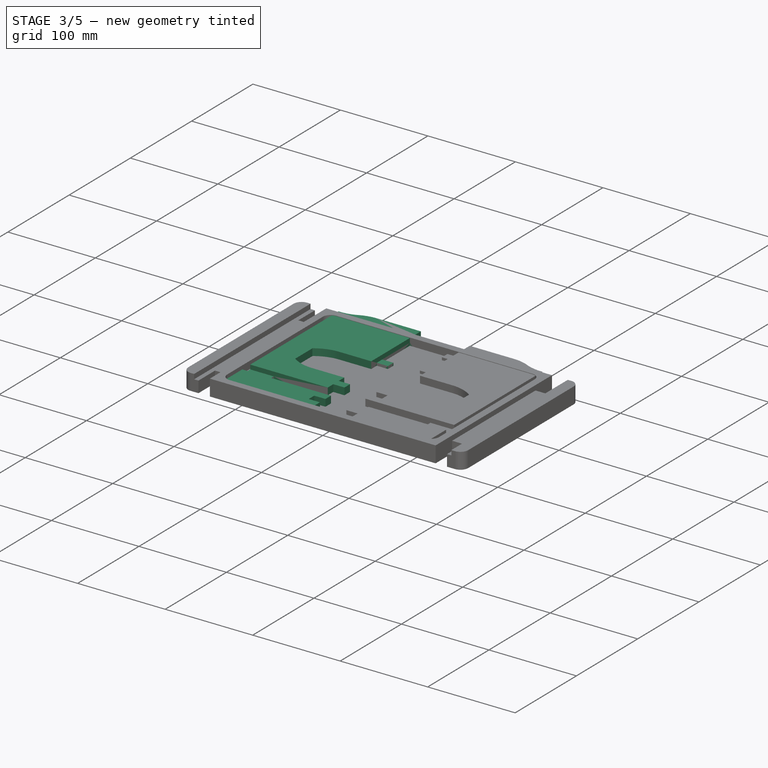
[diagram: stage 3 of 5 — iso view after this stage's code; geometry added in this stage tinted green]
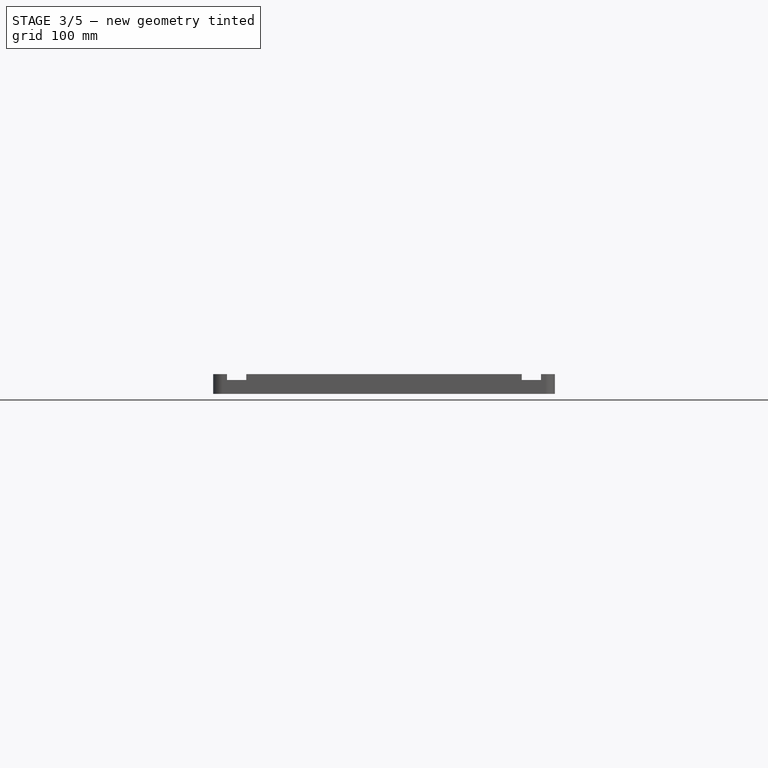
[diagram: stage 3 of 5 — front view after this stage's code; geometry added in this stage tinted green]
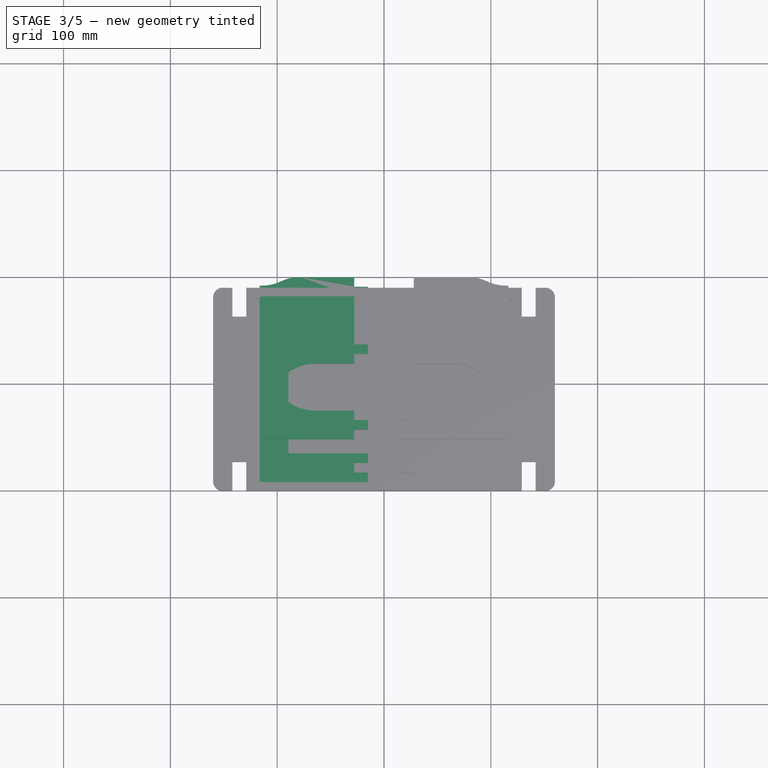
[diagram: stage 3 of 5 — top view after this stage's code; geometry added in this stage tinted green]
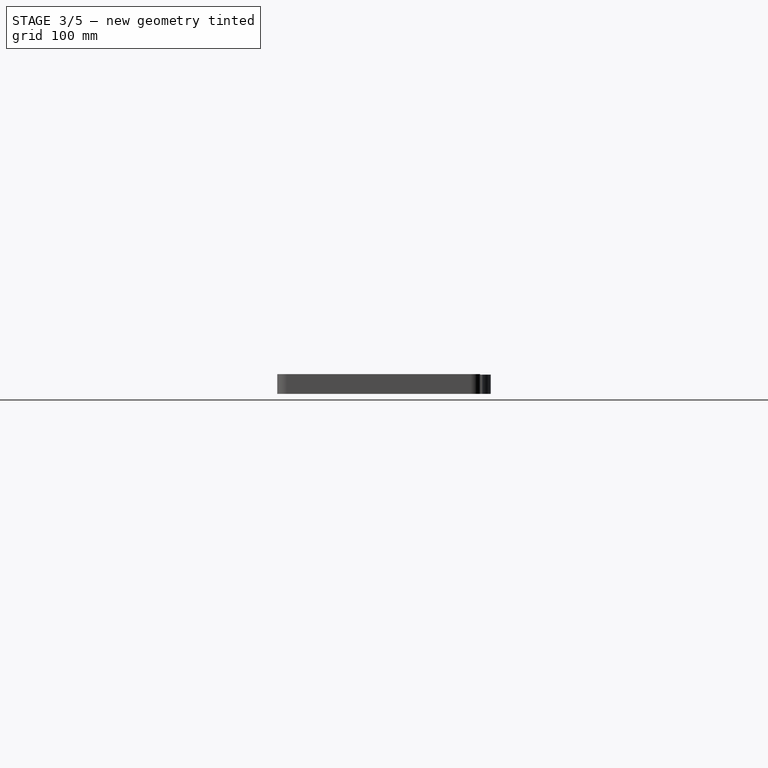
[diagram: stage 3 of 5 — right view after this stage's code; geometry added in this stage tinted green]
FEATURE [PartDesign::Pad] Pad001
  Length = 18
  Length2 = 100
  Placement = pos=(0,0,0) rot=(0.57735,0.57735,0.57735;2.0944rad)
  Profile = -> Clone2D001
  Type = 0
  expr: Length = Spreadsheet.Thickness
FEATURE [Sketcher::SketchObject] Sketch008
  ExternalGeometry = -> [Pad001]
  MapMode = 5
  Placement = pos=(18,0,2e-15) rot=(0.57735,0.57735,0.57735;2.0944rad)
  Support = -> [Pad001]
  sketch-geometry (4):
    g0: LineSegment StartX=-6.4 StartY=191 StartZ=0 EndX=6.4 EndY=191 EndZ=0
    g1: LineSegment StartX=6.4 StartY=191 StartZ=0 EndX=6.4 EndY=128 EndZ=0
    g2: LineSegment StartX=6.4 StartY=128 StartZ=0 EndX=-6.4 EndY=128 EndZ=0
    g3: LineSegment StartX=-6.4 StartY=128 StartZ=0 EndX=-6.4 EndY=191 EndZ=0
  constraints (10):
    c: Coincident(g0,g1)
    c: Coincident(g1,g2)
    c: Coincident(g2,g3)
    c: Coincident(g3,g0)
    c: Horizontal(g0)
    c: Horizontal(g2)
    c: Vertical(g1)
    c: Vertical(g3)
    c: Coincident(g0,g-3)
    c: Coincident(g1,g-4)
FEATURE [PartDesign::Pocket] Pocket003
  BaseFeature = -> Pad001
  Length = 5
  Length2 = 100
  Placement = pos=(0,0,0) rot=(0.57735,0.57735,0.57735;2.0944rad)
  Profile = -> Sketch008
  Type = 0
  expr: Length = Spreadsheet.Groove
FEATURE [Sketcher::SketchObject] Sketch009
  ExternalGeometry = -> [Pocket003]
  MapMode = 5
  Placement = pos=(18,0,4e-15) rot=(0.57735,0.57735,0.57735;2.0944rad)
  Support = -> [Pocket003]
  sketch-geometry (4):
    g0: LineSegment StartX=-68 StartY=48 StartZ=0 EndX=-95 EndY=48 EndZ=0
    g1: LineSegment StartX=-95 StartY=48 StartZ=0 EndX=-95 EndY=35 EndZ=0
    g2: LineSegment StartX=-95 StartY=35 StartZ=0 EndX=-68 EndY=35 EndZ=0
    g3: LineSegment StartX=-68 StartY=35 StartZ=0 EndX=-68 EndY=48 EndZ=0
  constraints (10):
    c: Coincident(g0,g1)
    c: Coincident(g1,g2)
    c: Coincident(g2,g3)
    c: Coincident(g3,g0)
    c: Horizontal(g0)
    c: Horizontal(g2)
    c: Vertical(g1)
    c: Coincident(g0,g-4)
    c: PointOnObject(g1,g-3)
    c: Coincident(g2,g-4)
FEATURE [PartDesign::Pocket] Pocket004
  BaseFeature = -> Pocket003
  Length = 5
  Length2 = 100
  Placement = pos=(0,0,0) rot=(0.57735,0.57735,0.57735;2.0944rad)
  Profile = -> Sketch009
  Type = 0
  expr: Length = Spreadsheet.Groove
FEATURE [Part::FeaturePython] Clone005  label="Clam_Left_Side_CNC_Model"  # Draft clone (typed FeaturePython)
  AttacherType = Attacher::AttachEngine3D
  Fuse = false
  Objects = -> [Body001]
  Placement = pos=(-21.5,0,0) rot=(0.57735,0.57735,0.57735;4.18879rad)
  Scale = (1,1,1)
FEATURE [Part::FeaturePython] Clone011  label="Model-Clam_Right_Side_CNC_Model"  # Draft clone (typed FeaturePython)
  AttacherType = Attacher::AttachEngine3D
  Fuse = false
  Objects = -> [Clone004]
  PathResource = Model
  Placement = pos=(21.5,0,9e-15) rot=(0.57735,0.57735,0.57735;4.18879rad)
  Scale = (1,1,1)
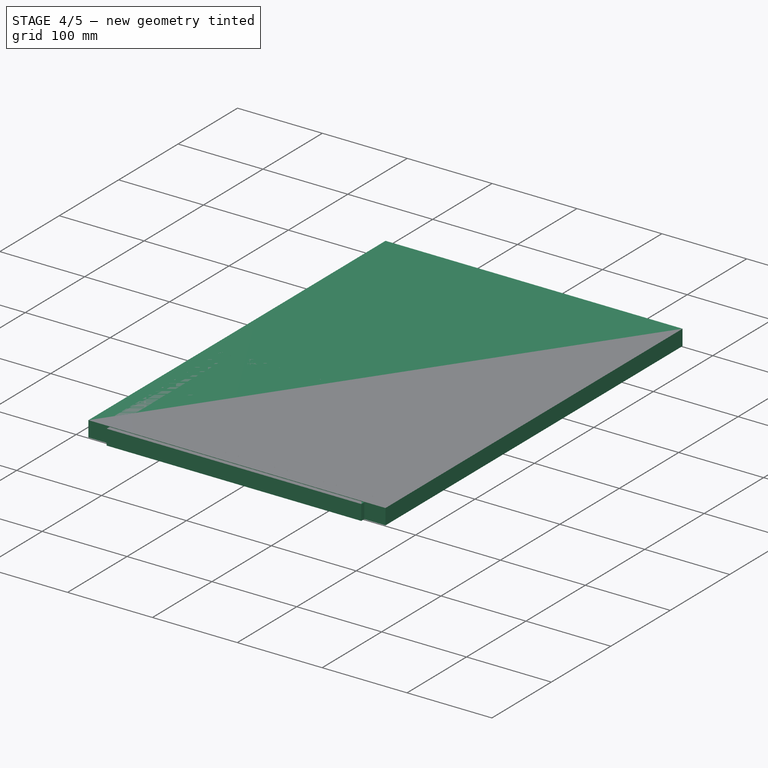
[diagram: stage 4 of 5 — iso view after this stage's code; geometry added in this stage tinted green]
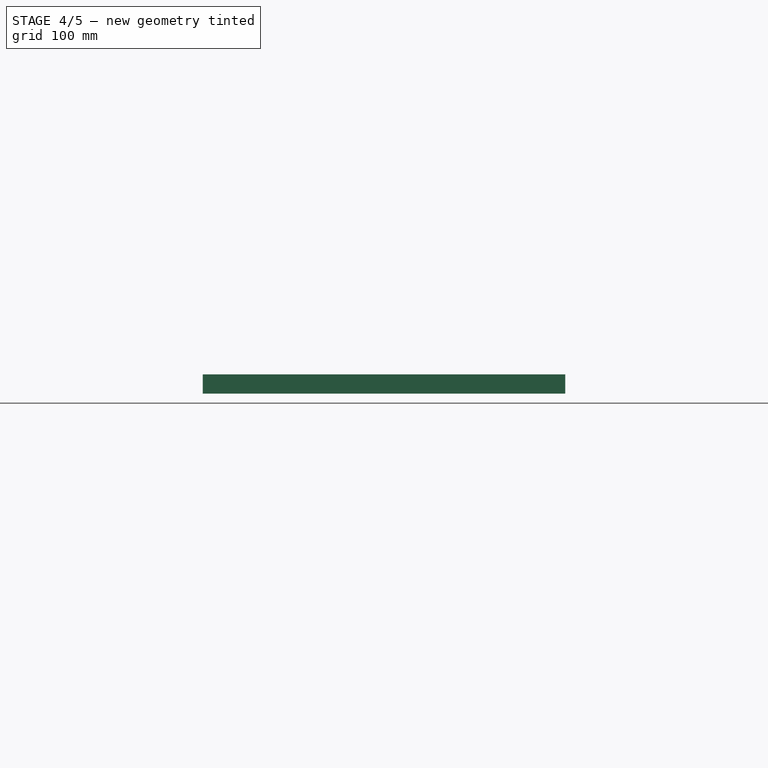
[diagram: stage 4 of 5 — front view after this stage's code; geometry added in this stage tinted green]
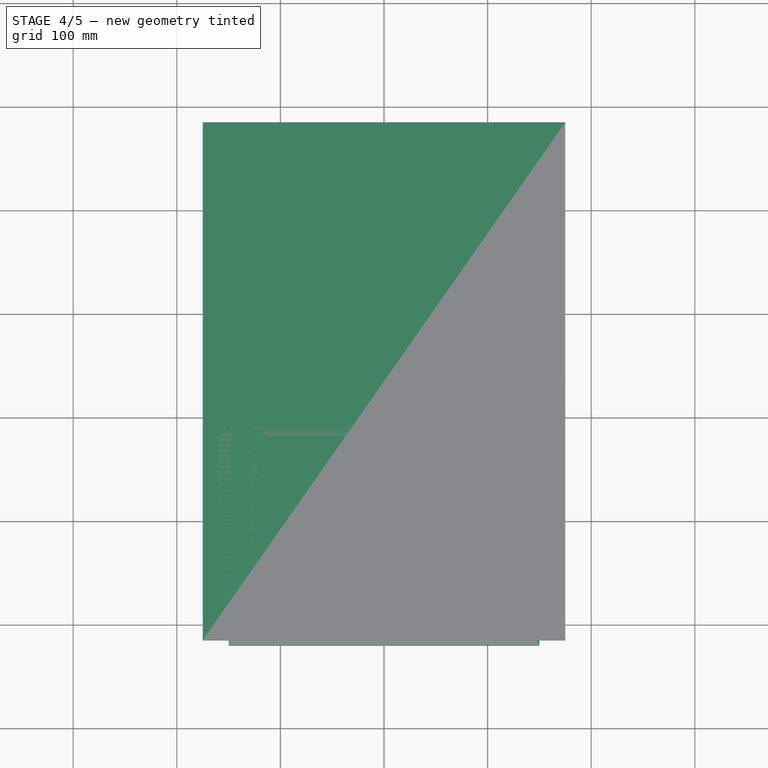
[diagram: stage 4 of 5 — top view after this stage's code; geometry added in this stage tinted green]
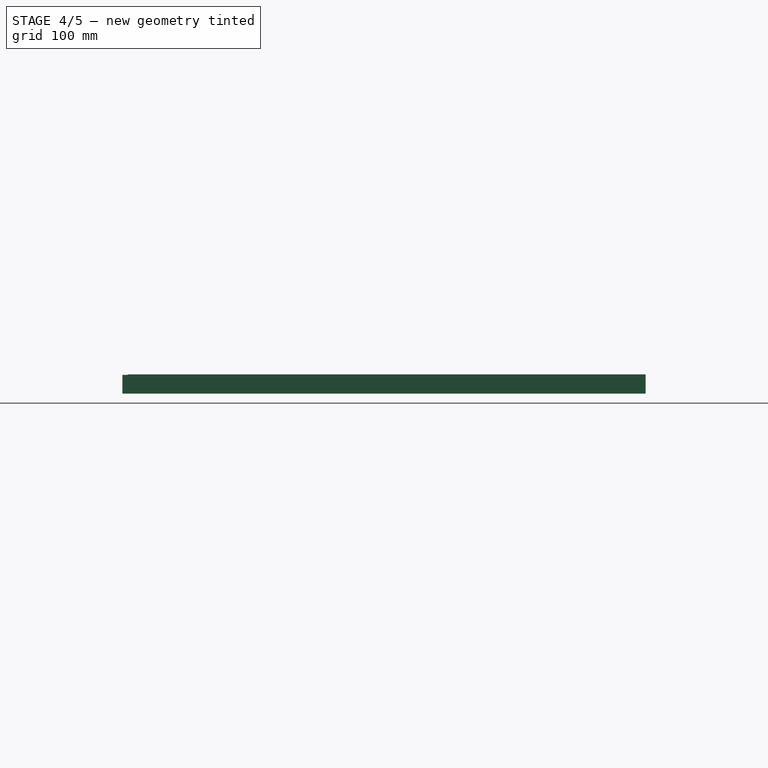
[diagram: stage 4 of 5 — right view after this stage's code; geometry added in this stage tinted green]
FEATURE [PartDesign::Pad] Pad002
  Length = 12.8
  Length2 = 100
  Placement = pos=(0,0,0) rot=(1,0,0;1.5708rad)
  Profile = -> Clone2D003
  Type = 0
  expr: Length = Spreadsheet.BambooThickness
FEATURE [Part::FeaturePython] Clone007  label="Handle_Body_CNC_Model"  # Draft clone (typed FeaturePython)
  AttacherType = Attacher::AttachEngine3D
  Fuse = false
  Objects = -> [Body002]
  Placement = pos=(0,40.5,-9e-15) rot=(-1,0,0;1.5708rad)
  Scale = (1,1,1)
FEATURE [App::FeaturePython] SetupSheet  # Path/CAM operation (typed FeaturePython)
  ClearanceHeightExpression = OpStockZMax+SetupSheet.ClearanceHeightOffset
  ClearanceHeightOffset = 5
  CoolantMode = 0
  CoolantModes = None | Flood | Mist
  FinalDepthExpression = OpFinalDepth
  HorizRapid = 66.67
  SafeHeightExpression = OpStockZMax+SetupSheet.SafeHeightOffset
  SafeHeightOffset = 3
  StartDepthExpression = OpStartDepth
  StepDownExpression = OpToolDiameter / 6
  VertRapid = 16.66
FEATURE [Part::FeaturePython] Clone008  label="Model-Handle_Body_CNC_Model"  # Draft clone (typed FeaturePython)
  AttacherType = Attacher::AttachEngine3D
  Fuse = false
  Objects = -> [Clone007]
  PathResource = Model
  Placement = pos=(0,40.5,-9e-15) rot=(-1,0,0;1.5708rad)
  Scale = (1,1,1)
FEATURE [App::DocumentObjectGroup] Model001
  Group = -> [Clone009]
FEATURE [Path::FeaturePython] T6__2FluteWoodMill001001  label="T6: 2FluteWoodMill002"  # Path/CAM operation (typed FeaturePython)
  HorizFeed = 20
  HorizRapid = 66.67
  SpindleDir = 0
  SpindleSpeed = 18000
  ToolNumber = 6
  VertFeed = 16.66
  VertRapid = 16.66
  expr: HorizRapid = SetupSheet001.HorizRapid
  expr: VertRapid = SetupSheet001.VertRapid
FEATURE [Part::FeaturePython] Stock002  # WARN: FeaturePython — macro-defined, semantics opaque (R4)
  Height = 18.5
  Length = 350
  Placement = pos=(-175,-15,0) rot=(0,0,1;0rad)
  StockType = CreateBox
  Width = 500
FEATURE [Path::FeaturePython] Profile002  label="Tray_Body_Profile"  # Path/CAM operation (typed FeaturePython)
  Active = true
  AreaParams:
    Tolerance = 1e-07
    FitArcs = True
    Simplify = False
    CleanDistance = 0.0
    Accuracy = 0.01
    Unit = 1.0
    MinArcPoints = 4
    MaxArcPoints = 100
    ClipperScale = 10000000.0
    Fill = 0
    Coplanar = 0
    Reorient = True
    Outline = False
    Explode = False
    OpenMode = 0
    Deflection = 0.01
    SubjectFill = 0
    ClipFill = 0
    Offset = 1.585
    ExtraPass = 0
    Stepover = 0.0
    LastStepover = 0.0
    JoinType = 0
    EndType = 0
    MiterLimit = 2.0
    RoundPrecision = 0.0
    PocketMode = 0
    ToolRadius = 1.0
    PocketExtraOffset = 0.0
    PocketStepover = 0.0
    PocketLastStepover = 0.0
    FromCenter = False
    Angle = 45.0
    AngleShift = 0.0
    Shift = 0.0
    Thicken = False
    SectionCount = -1
    Stepdown = 1.0
    SectionOffset = 0.0
    SectionTolerance = 1e-06
    SectionMode = 2
    Project = False
  AttemptInverseAngle = true
  ClearanceHeight = 23.5
  CoolantMode = None
  CycleTime = 00:48:11
  Direction = 1
  EnableRotation = 0
  FinalDepth = -0.2
  HandleMultipleFeatures = 1
  InverseAngle = false
  JoinType = 0
  LimitDepthToFace = true
  MiterLimit = 0.1
  OffsetExtra = 0
  OpFinalDepth = 0
  OpStartDepth = 18.5
  OpStockZMax = 18.5
  OpStockZMin = 0
  OpToolDiameter = 3.17
  PathParams = {'orientation': 0, 'feedrate': 20.0, 'feedrate_v': 16.66, 'verbose': True, 'resume_height': 21.5, 'retraction': 23.5, 'return_end': True, 'preamble': False}
  ReverseDirection = false
  SafeHeight = 21.5
  Side = 0
  StartDepth = 18.5
  StartPoint = (0,0,0)
  StepDown = 0.39625
  ToolController = -> T6__2FluteWoodMill001001
  UseComp = true
  UseStartPoint = false
  processCircles = false
  processHoles = false
  processPerimeter = true
  expr: ClearanceHeight = OpStockZMax + SetupSheet001.ClearanceHeightOffset
  expr: SafeHeight = OpStockZMax + SetupSheet001.SafeHeightOffset
  expr: StepDown = OpToolDiameter / 8
  expr: FinalDepth = OpFinalDepth - 0.2mm
  expr: StartDepth = OpStartDepth
FEATURE [Path::FeaturePython] Pocket_Shape  label="Tray_Body_Groove"  # Path/CAM operation (typed FeaturePython)
  Active = true
  AreaParams:
    Tolerance = 1e-07
    FitArcs = True
    Simplify = False
    CleanDistance = 0.0
    Accuracy = 0.01
    Unit = 1.0
    MinArcPoints = 4
    MaxArcPoints = 100
    ClipperScale = 10000000.0
    Fill = 0
    Coplanar = 0
    Reorient = True
    Outline = False
    Explode = False
    OpenMode = 0
    Deflection = 0.01
    SubjectFill = 0
    ClipFill = 0
    Offset = 0.0
    ExtraPass = 0
    Stepover = 0.0
    LastStepover = 0.0
    JoinType = 0
    EndType = 0
    MiterLimit = 2.0
    RoundPrecision = 0.0
    PocketMode = 2
    ToolRadius = 1.585
    PocketExtraOffset = 0.0
    PocketStepover = 2.3775
    PocketLastStepover = 0.0
    FromCenter = True
    Angle = 0.0
    AngleShift = 0.0
    Shift = 0.0
    Thicken = False
    SectionCount = -1
    Stepdown = 1.0
    SectionOffset = 0.0
    SectionTolerance = 1e-06
    SectionMode = 2
    Project = False
  AttemptInverseAngle = true
  Base = -> [Clone009]
  ClearanceHeight = 23.5
  CoolantMode = None
  CutMode = 0
  CycleTime = 00:29:29
  EnableRotation = 0
  ExtensionCorners = true
  ExtensionFeature = -> [Clone009]
  ExtensionLengthDefault = 1.585
  ExtraOffset = 0
  FinalDepth = 13
  FinishDepth = 0
  InverseAngle = false
  KeepToolDown = false
  LimitDepthToFace = true
  MinTravel = false
  OffsetPattern = 1
  OpFinalDepth = 13
  OpStartDepth = 18.5
  OpStockZMax = 18.5
  OpStockZMin = 0
  OpToolDiameter = 3.17
  PathParams = {'orientation': 1, 'feedrate': 20.0, 'feedrate_v': 16.66, 'verbose': True, 'resume_height': 21.5, 'retraction': 23.5, 'return_end': True, 'preamble': False, 'start': Vector (-145.41499999999996, 155.86749989999998, 23.5)}
  ReverseDirection = false
  SafeHeight = 21.5
  StartAt = 0
  StartDepth = 18.5
  StartPoint = (0,0,0)
  StepDown = 0.39625
  StepOver = 75
  ToolController = -> T6__2FluteWoodMill001001
  UseOutline = false
  UseStartPoint = false
  ZigZagAngle = 0
  expr: ExtensionLengthDefault = OpToolDiameter / 2
  expr: ClearanceHeight = OpStockZMax + SetupSheet001.ClearanceHeightOffset
  expr: SafeHeight = OpStockZMax + SetupSheet001.SafeHeightOffset
  expr: StepDown = OpToolDiameter / 8
  expr: FinalDepth = OpFinalDepth
  expr: StartDepth = OpStartDepth
FEATURE [Path::FeaturePython] DogboneDressup002  # Path/CAM operation (typed FeaturePython)
  Base = -> Profile002
  Custom = 0
  Incision = 0
  Side = 0
  Style = 0
FEATURE [Path::FeaturePython] DressupTag002  label="Tray_Body_Profile_With_Tags"  # Path/CAM operation (typed FeaturePython)
  Angle = 60
  Base = -> DogboneDressup002
  Height = 3
  Positions = (19) [(86,191.587,0),(0,191.587,0),(-86,191.587,0),(-161.587,137.982,0),(-161.586,51.945,0),(-96.75,-1.5875,0),(-32.25,-1.5875,0),(32.25,-1.5875,0),+11 more]
  Radius = 0
  SegmentationFactor = 50
  Width = 4
FEATURE [Path::FeaturePython] Adaptive  label="Tray_Body_Bottom_Finish"  # Path/CAM operation (typed FeaturePython)
  Active = true
  Base = -> [Clone009]
  ClearanceHeight = 23.5
  CoolantMode = None
  CycleTime = 01:04:23
  FinalDepth = 10
  FinishDepth = 0
  ForceInsideOut = false
  HelixAngle = 5
  HelixDiameterLimit = 0
  KeepToolDownRatio = 3
  LiftDistance = 0
  OpFinalDepth = 10
  OpStartDepth = 18.5
  OpStockZMax = 18.5
  OpStockZMin = 0
  OpToolDiameter = 3.17
  OperationType = 0
  SafeHeight = 21.5
  Side = 1
  StartDepth = 10.5
  StepDown = 1.585
  StepOver = 20
  StockToLeave = 0
  StopProcessing = false
  Stopped = false
  Tolerance = 0.1
  ToolController = -> T6__2FluteWoodMill001001
  UseHelixArcs = false
  expr: ClearanceHeight = OpStockZMax + SetupSheet001.ClearanceHeightOffset
  expr: SafeHeight = OpStockZMax + SetupSheet001.SafeHeightOffset
  expr: StepDown = OpToolDiameter / 2
  expr: FinalDepth = OpFinalDepth
  expr: StartDepth = 10.5mm
FEATURE [Path::FeaturePython] Profile003  label="Tray_Body_Bottom_Profile"  # Path/CAM operation (typed FeaturePython)
  Active = true
  AreaParams:
    Tolerance = 1e-07
    FitArcs = True
    Simplify = False
    CleanDistance = 0.0
    Accuracy = 0.01
    Unit = 1.0
    MinArcPoints = 4
    MaxArcPoints = 100
    ClipperScale = 10000000.0
    Fill = 0
    Coplanar = 0
    Reorient = True
    Outline = False
    Explode = False
    OpenMode = 0
    Deflection = 0.01
    SubjectFill = 0
    ClipFill = 0
    Offset = -1.585
    ExtraPass = 0
    Stepover = 0.0
    LastStepover = 0.0
    JoinType = 0
    EndType = 0
    MiterLimit = 2.0
    RoundPrecision = 0.0
    PocketMode = 0
    ToolRadius = 1.0
    PocketExtraOffset = 0.0
    PocketStepover = 0.0
    PocketLastStepover = 0.0
    FromCenter = False
    Angle = 45.0
    AngleShift = 0.0
    Shift = 0.0
    Thicken = False
    SectionCount = -1
    Stepdown = 1.0
    SectionOffset = 0.0
    SectionTolerance = 1e-06
    SectionMode = 2
    Project = False
  AttemptInverseAngle = true
  Base = -> [Clone009]
  ClearanceHeight = 23.5
  CoolantMode = None
  CycleTime = 00:06:03
  Direction = 0
  EnableRotation = 0
  FinalDepth = 10
  HandleMultipleFeatures = 1
  InverseAngle = false
  JoinType = 0
  LimitDepthToFace = true
  MiterLimit = 0.1
  OffsetExtra = 0
  OpFinalDepth = 0
  OpStartDepth = 18.5
  OpStockZMax = 18.5
  OpStockZMin = 0
  OpToolDiameter = 3.17
  PathParams = {'orientation': 1, 'feedrate': 20.0, 'feedrate_v': 16.66, 'verbose': True, 'resume_height': 21.5, 'retraction': 23.5, 'return_end': True, 'preamble': False}
  ReverseDirection = false
  SafeHeight = 21.5
  Side = 1
  StartDepth = 18.5
  StartPoint = (0,0,0)
  StepDown = 1.05667
  ToolController = -> T6__2FluteWoodMill001001
  UseComp = true
  UseStartPoint = false
  processCircles = false
  processHoles = false
  processPerimeter = true
  expr: ClearanceHeight = OpStockZMax + SetupSheet001.ClearanceHeightOffset
  expr: SafeHeight = OpStockZMax + SetupSheet001.SafeHeightOffset
  expr: StepDown = OpToolDiameter / 3
  expr: FinalDepth = 10mm
  expr: StartDepth = OpStartDepth
FEATURE [App::FeaturePython] SetupSheet002  # Path/CAM operation (typed FeaturePython)
  ClearanceHeightExpression = OpStockZMax+SetupSheet002.ClearanceHeightOffset
  ClearanceHeightOffset = 5
  CoolantMode = 0
  CoolantModes = None | Flood | Mist
  FinalDepthExpression = OpFinalDepth
  HorizRapid = 66.67
  SafeHeightExpression = OpStockZMax+SetupSheet002.SafeHeightOffset
  SafeHeightOffset = 3
  StartDepthExpression = OpStartDepth
  StepDownExpression = OpToolDiameter / 6
  VertRapid = 16.66
FEATURE [Part::FeaturePython] Clone010  label="Model-Clam_Left_Side_CNC_Model"  # Draft clone (typed FeaturePython)
  AttacherType = Attacher::AttachEngine3D
  Fuse = false
  Objects = -> [Clone005]
  PathResource = Model
  Placement = pos=(-21.5,0,0) rot=(0.57735,0.57735,0.57735;4.18879rad)
  Scale = (1,1,1)
FEATURE [App::DocumentObjectGroup] Model002
  Group = -> [Clone010,Clone011]
FEATURE [Path::FeaturePython] T6__2FluteWoodMill001002  label="T6: 2FluteWoodMill003"  # Path/CAM operation (typed FeaturePython)
  HorizFeed = 33.33
  HorizRapid = 66.67
  SpindleDir = 0
  SpindleSpeed = 14000
  ToolNumber = 6
  VertFeed = 16.66
  VertRapid = 16.66
  expr: HorizRapid = SetupSheet002.HorizRapid
  expr: VertRapid = SetupSheet002.VertRapid
FEATURE [Part::FeaturePython] Stock003  # WARN: FeaturePython — macro-defined, semantics opaque (R4)
  Height = 18
  Length = 300
  Placement = pos=(-150,-20,0) rot=(0,0,1;0rad)
  StockType = CreateBox
  Width = 500
FEATURE [Path::FeaturePython] Profile005  label="Sides_Profile"  # Path/CAM operation (typed FeaturePython)
  Active = true
  AreaParams:
    Tolerance = 1e-07
    FitArcs = True
    Simplify = False
    CleanDistance = 0.0
    Accuracy = 0.01
    Unit = 1.0
    MinArcPoints = 4
    MaxArcPoints = 100
    ClipperScale = 10000000.0
    Fill = 0
    Coplanar = 0
    Reorient = True
    Outline = False
    Explode = False
    OpenMode = 0
    Deflection = 0.01
    SubjectFill = 0
    ClipFill = 0
    Offset = 1.5875
    ExtraPass = 0
    Stepover = 0.0
    LastStepover = 0.0
    JoinType = 0
    EndType = 0
    MiterLimit = 2.0
    RoundPrecision = 0.0
    PocketMode = 0
    ToolRadius = 1.0
    PocketExtraOffset = 0.0
    PocketStepover = 0.0
    PocketLastStepover = 0.0
    FromCenter = False
    Angle = 45.0
    AngleShift = 0.0
    Shift = 0.0
    Thicken = False
    SectionCount = -1
    Stepdown = 1.0
    SectionOffset = 0.0
    SectionTolerance = 1e-06
    SectionMode = 2
    Project = False
  AttemptInverseAngle = true
  ClearanceHeight = 23
  CoolantMode = None
  CycleTime = 00:30:33
  Direction = 1
  EnableRotation = 0
  FinalDepth = -0.2
  HandleMultipleFeatures = 1
  InverseAngle = false
  JoinType = 0
  LimitDepthToFace = true
  MiterLimit = 0.1
  OffsetExtra = 0
  OpFinalDepth = 0
  OpStartDepth = 18
  OpStockZMax = 18
  OpStockZMin = 0
  OpToolDiameter = 3.175
  PathParams = {'orientation': 0, 'feedrate': 33.33, 'feedrate_v': 16.66, 'verbose': True, 'resume_height': 21.0, 'retraction': 23.0, 'return_end': True, 'preamble': False, 'start': Vector (-14.86460024447415, 192.56995005625114, 23.0)}
  ReverseDirection = false
  SafeHeight = 21
  Side = 0
  StartDepth = 18
  StartPoint = (0,0,0)
  StepDown = 0.529167
  ToolController = -> T6__2FluteWoodMill001002
  UseComp = true
  UseStartPoint = false
  processCircles = false
  processHoles = false
  processPerimeter = true
  expr: ClearanceHeight = OpStockZMax + SetupSheet002.ClearanceHeightOffset
  expr: SafeHeight = OpStockZMax + SetupSheet002.SafeHeightOffset
  expr: StepDown = OpToolDiameter / 6
  expr: FinalDepth = OpFinalDepth - 0.2mm
  expr: StartDepth = OpStartDepth
FEATURE [Path::FeaturePython] DogboneDressup003  # Path/CAM operation (typed FeaturePython)
  Base = -> Profile005
  Custom = 0
  Incision = 0
  Side = 0
  Style = 0
FEATURE [Path::FeaturePython] DressupTag003  label="Sides_Profile_With_Tags"  # Path/CAM operation (typed FeaturePython)
  Angle = 60
  Base = -> DogboneDressup003
  Disabled = [6,26]
  Height = 3
  Positions = (38) [(-18.71,192.59,-0.199999),(-51.17,201.59,-0.199999),(-118.09,161.45,-0.199999),(-118.09,39.03,-0.199999),(-52.12,6.41,-0.199999),+33 more]
  Radius = 0
  SegmentationFactor = 50
  Width = 4
FEATURE [Path::FeaturePython] Pocket_Shape001  label="Side_Grooves"  # Path/CAM operation (typed FeaturePython)
  Active = true
  AreaParams:
    Tolerance = 1e-07
    FitArcs = True
    Simplify = False
    CleanDistance = 0.0
    Accuracy = 0.01
    Unit = 1.0
    MinArcPoints = 4
    MaxArcPoints = 100
    ClipperScale = 10000000.0
    Fill = 0
    Coplanar = 0
    Reorient = True
    Outline = False
    Explode = False
    OpenMode = 0
    Deflection = 0.01
    SubjectFill = 0
    ClipFill = 0
    Offset = 0.0
    ExtraPass = 0
    Stepover = 0.0
    LastStepover = 0.0
    JoinType = 0
    EndType = 0
    MiterLimit = 2.0
    RoundPrecision = 0.0
    PocketMode = 2
    ToolRadius = 1.5875
    PocketExtraOffset = 0.0
    PocketStepover = 2.54
    PocketLastStepover = 0.0
    FromCenter = True
    Angle = 45.0
    AngleShift = 0.0
    Shift = 0.0
    Thicken = False
    SectionCount = -1
    Stepdown = 1.0
    SectionOffset = 0.0
    SectionTolerance = 1e-06
    SectionMode = 2
    Project = False
  AttemptInverseAngle = true
  Base = -> [Clone010,Clone011]
  ClearanceHeight = 23
  CoolantMode = None
  CutMode = 0
  CycleTime = 00:06:56
  EnableRotation = 0
  ExtensionCorners = true
  ExtensionFeature = -> [Clone010,Clone011]
  ExtensionLengthDefault = 1.5875
  ExtraOffset = 0
  FinalDepth = 13
  FinishDepth = 0
  InverseAngle = false
  KeepToolDown = false
  LimitDepthToFace = true
  MinTravel = false
  OffsetPattern = 1
  OpFinalDepth = 13
  OpStartDepth = 18
  OpStockZMax = 18
  OpStockZMin = 0
  OpToolDiameter = 3.175
  PathParams = {'orientation': 1, 'feedrate': 33.33, 'feedrate_v': 16.66, 'verbose': True, 'resume_height': 21.0, 'retraction': 23.0, 'return_end': True, 'preamble': False, 'start': Vector (0.0, 0.0, 23.0)}
  ReverseDirection = false
  SafeHeight = 21
  StartAt = 0
  StartDepth = 18
  StartPoint = (0,0,0)
  StepDown = 0.529167
  StepOver = 80
  ToolController = -> T6__2FluteWoodMill001002
  UseOutline = false
  UseStartPoint = false
  ZigZagAngle = 45
  expr: ExtensionLengthDefault = OpToolDiameter / 2
  expr: ClearanceHeight = OpStockZMax + SetupSheet002.ClearanceHeightOffset
  expr: SafeHeight = OpStockZMax + SetupSheet002.SafeHeightOffset
  expr: StepDown = OpToolDiameter / 6
  expr: FinalDepth = OpFinalDepth
  expr: StartDepth = OpStartDepth
FEATURE [Path::FeatureCompoundPython] Operations002  # Path/CAM operation (typed FeaturePython)
  Group = -> [DressupTag003,Pocket_Shape001]
  UsePlacements = false
FEATURE [Path::FeaturePython] Job002  label="Sides_Body_Job"  # Path/CAM operation (typed FeaturePython)
  CycleTime = 00:37:29
  Fixtures = G54
  GeometryTolerance = 0.01
  Model = -> Model002
  Operations = -> Operations002
  OrderOutputBy = 0
  PostProcessor = 1
  PostProcessorArgs = --wait-for-spindle 5
  PostProcessorOutputFile = %D/gcode/%j.nc
  SetupSheet = -> SetupSheet002
  SplitOutput = false
  Stock = -> Stock003
  ToolController = -> [T6__2FluteWoodMill001002]
FEATURE [Path::FeaturePython] Adaptive001  label="Tray_Body_Bottom_Raw"  # Path/CAM operation (typed FeaturePython)
  Active = true
  Base = -> [Clone009]
  ClearanceHeight = 23.5
  CoolantMode = None
  CycleTime = 01:46:01
  FinalDepth = 10.5
  FinishDepth = 0
  ForceInsideOut = false
  HelixAngle = 5
  HelixDiameterLimit = 0
  KeepToolDownRatio = 3
  LiftDistance = 0
  OpFinalDepth = 10
  OpStartDepth = 18.5
  OpStockZMax = 18.5
  OpStockZMin = 0
  OpToolDiameter = 3.17
  OperationType = 0
  SafeHeight = 21.5
  Side = 1
  StartDepth = 18.5
  StepDown = 2
  StepOver = 50
  StockToLeave = 0
  StopProcessing = false
  Stopped = false
  Tolerance = 0.1
  ToolController = -> T6__2FluteWoodMill001001
  UseHelixArcs = false
  expr: StartDepth = OpStartDepth
  expr: FinalDepth = 10.5mm
  expr: StepDown = 2mm
  expr: SafeHeight = OpStockZMax + SetupSheet001.SafeHeightOffset
  expr: ClearanceHeight = OpStockZMax + SetupSheet001.ClearanceHeightOffset
FEATURE [Path::FeatureCompoundPython] Operations001  # Path/CAM operation (typed FeaturePython)
  Group = -> [Pocket_Shape,Adaptive001,Adaptive,Profile003,DressupTag002]
  UsePlacements = false
FEATURE [Path::FeaturePython] Job001  label="Tray_Body_Job"  # Path/CAM operation (typed FeaturePython)
  CycleTime = 04:14:07
  Fixtures = G54
  GeometryTolerance = 0.01
  Model = -> Model001
  Operations = -> Operations001
  OrderOutputBy = 0
  PostProcessor = 1
  PostProcessorArgs = --wait-for-spindle 5
  PostProcessorOutputFile = %D/gcode/%j.nc
  SetupSheet = -> SetupSheet001
  SplitOutput = false
  Stock = -> Stock002
  ToolController = -> [T6__2FluteWoodMill001001]
FEATURE [App::DocumentObjectGroup] Group  label="CNC"
  Group = -> [Clone004,Clone005,Clone006,Clone007,Job,Job001,Job002]
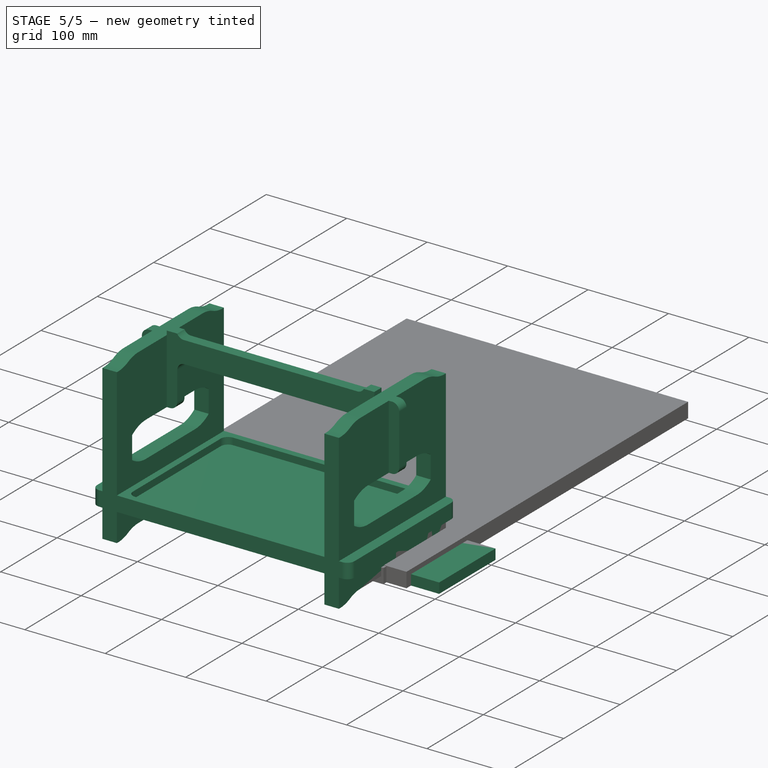
[diagram: stage 5 of 5 — iso view after this stage's code; geometry added in this stage tinted green]
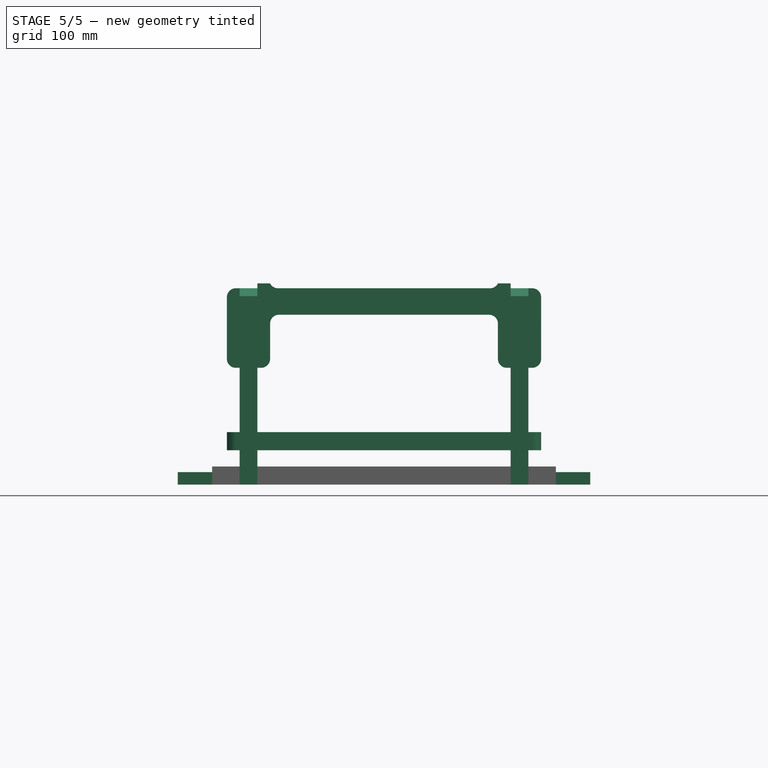
[diagram: stage 5 of 5 — front view after this stage's code; geometry added in this stage tinted green]
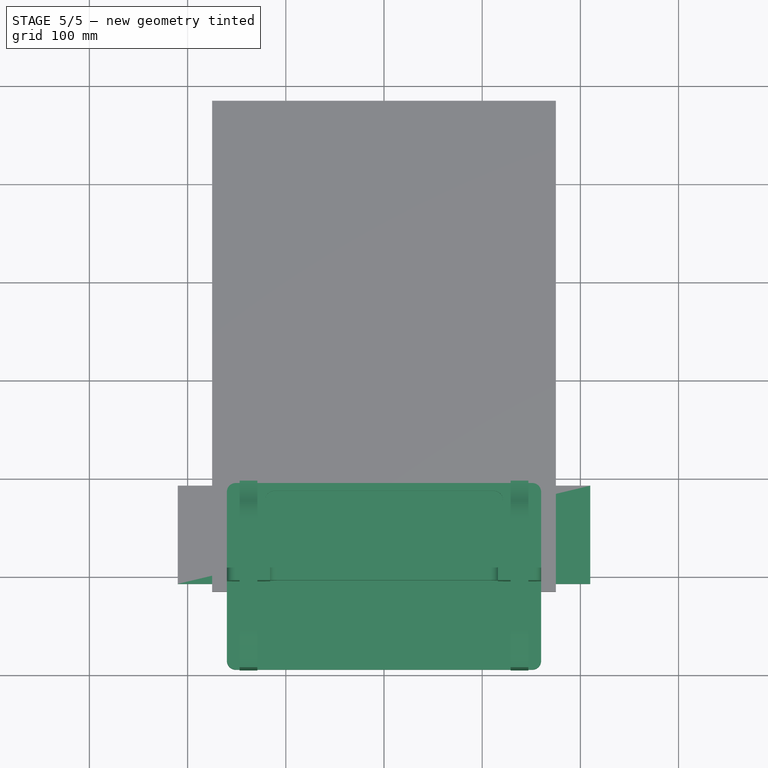
[diagram: stage 5 of 5 — top view after this stage's code; geometry added in this stage tinted green]
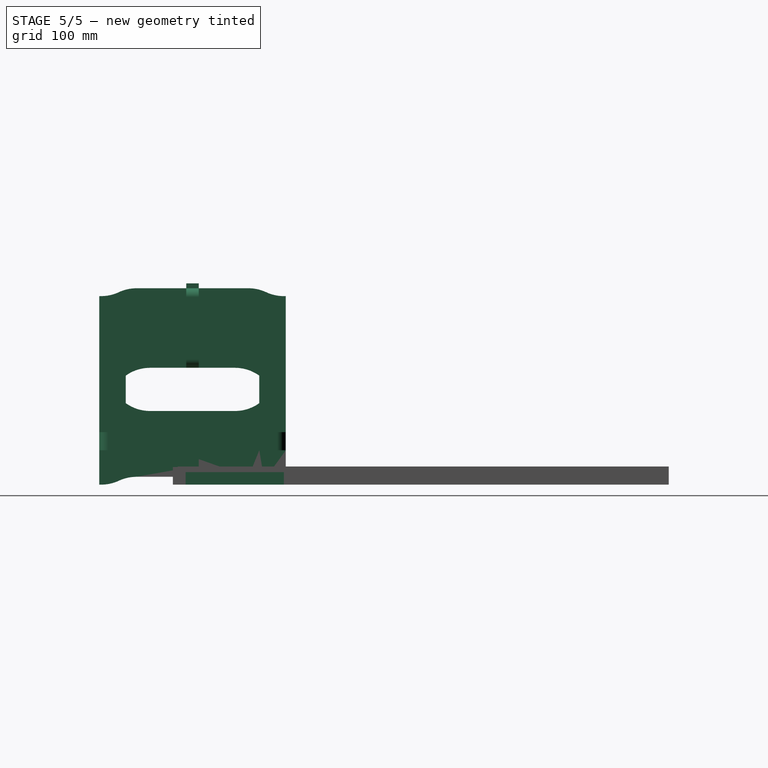
[diagram: stage 5 of 5 — right view after this stage's code; geometry added in this stage tinted green]
FEATURE [Part::FeaturePython] Clone  label="Handle_Body001"  # Draft clone (typed FeaturePython)
  AttacherType = Attacher::AttachEngine3D
  Fuse = false
  Objects = -> [Body002]
  Placement = pos=(0,6.4,159.5) rot=(0,0,1;0rad)
  Scale = (1,1,1)
FEATURE [PartDesign::Body] Body  label="Clam_Right_Side_Body"
  Group = -> [Clone2D,Pad,Sketch007,Pocket002,Sketch010,Pocket005]
  Origin = -> Origin001
  Tip = -> Pocket005
FEATURE [App::Part] Part  label="Clam_Body"
  Group = -> [Body,Body001]
  Origin = -> Origin
FEATURE [Part::FeaturePython] Clone002  label="Part001"  # Draft clone (typed FeaturePython)
  AttacherType = Attacher::AttachEngine3D
  Fuse = false
  Objects = -> [Part]
  Placement = pos=(129,0,0) rot=(0,0,1;0rad)
  Scale = (1,1,1)
  expr: .Placement.Base.x = Spreadsheet.Width / 2 - 2 * Spreadsheet.Thickness + Spreadsheet.Groove
FEATURE [Part::FeaturePython] Clone003  label="Part002"  # Draft clone (typed FeaturePython)
  AttacherType = Attacher::AttachEngine3D
  Fuse = false
  Objects = -> [Part]
  Placement = pos=(-129,-1.6e-14,0) rot=(0,0,1;3.14159rad)
  Scale = (1,1,1)
  expr: .Placement.Base.x = -(Spreadsheet.Width / 2 - 2 * Spreadsheet.Thickness + Spreadsheet.Groove)
FEATURE [PartDesign::Body] Body003  label="Tray_Body"
  Group = -> [Clone2D002,Pad003,Sketch005,Pocket,Mirrored,Sketch006,Pocket001,Mirrored001]
  Origin = -> Origin004
  Tip = -> Mirrored001
FEATURE [App::DocumentObjectGroup] Group002  label="Shapes"
  Group = -> [Body002,Body003,Part]
FEATURE [Part::FeaturePython] Clone001  label="Tray_Body001"  # Draft clone (typed FeaturePython)
  AttacherType = Attacher::AttachEngine3D
  Fuse = false
  Objects = -> [Body003]
  Placement = pos=(0,0,35) rot=(0,0,1;0rad)
  Scale = (1,1,1)
FEATURE [App::DocumentObjectGroup] Model
  Group = -> [Clone008]
FEATURE [Path::FeaturePython] T6__2FluteWoodMill001  label="T6: 2FluteWoodMill001"  # Path/CAM operation (typed FeaturePython)
  HorizFeed = 33.33
  HorizRapid = 66.67
  SpindleDir = 0
  SpindleSpeed = 14000
  ToolNumber = 6
  VertFeed = 16.66
  VertRapid = 16.66
  expr: VertRapid = SetupSheet.VertRapid
  expr: HorizRapid = SetupSheet.HorizRapid
FEATURE [Part::FeaturePython] Stock001  # WARN: FeaturePython — macro-defined, semantics opaque (R4)
  Height = 12.8
  Length = 420
  Placement = pos=(-210,-7,-5.48e-14) rot=(0,0,1;0rad)
  StockType = CreateBox
  Width = 100
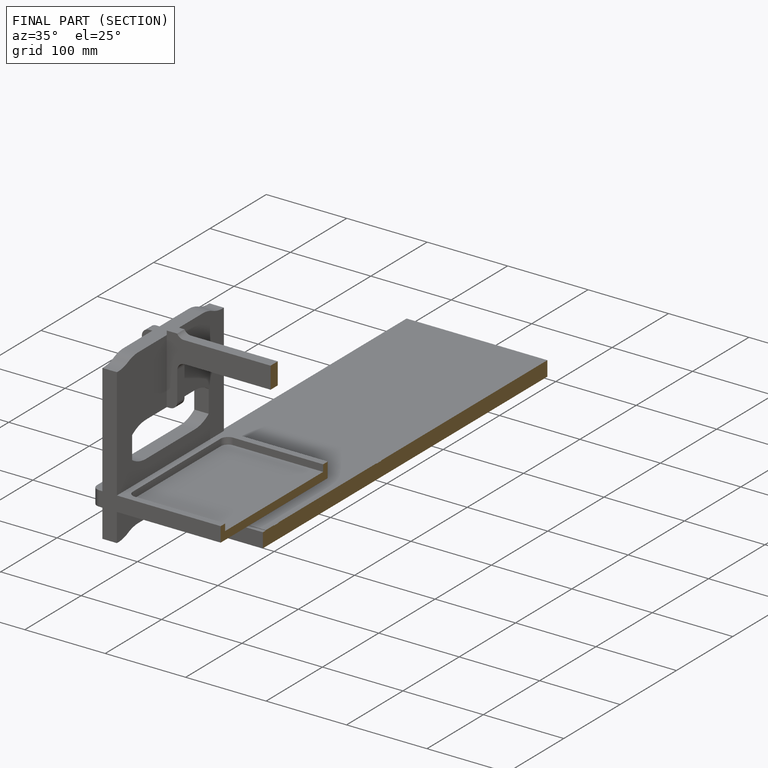
[diagram: finished part — half-section view (interior)]
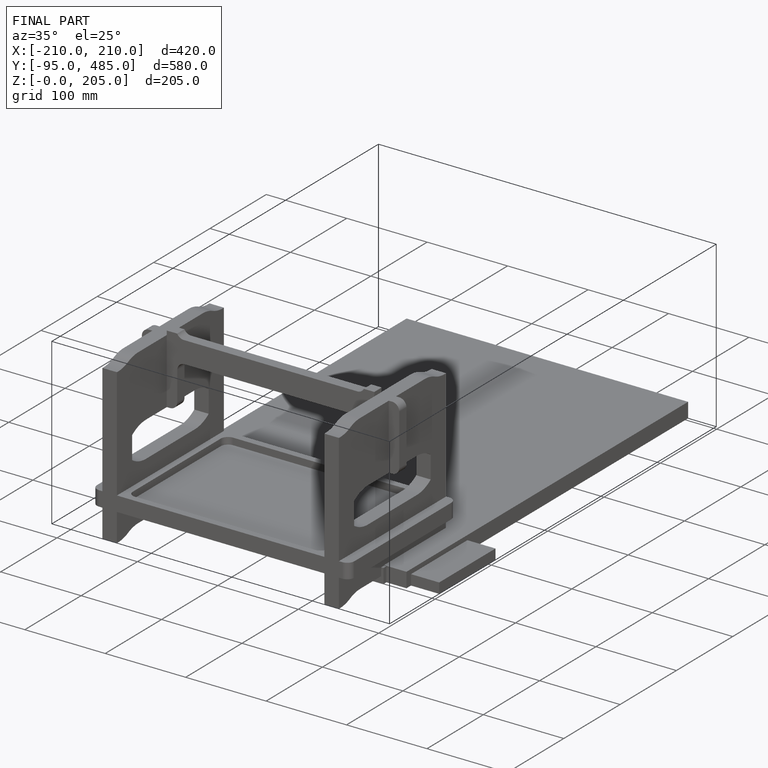
[diagram: finished part — iso view with bounding-box wireframe]
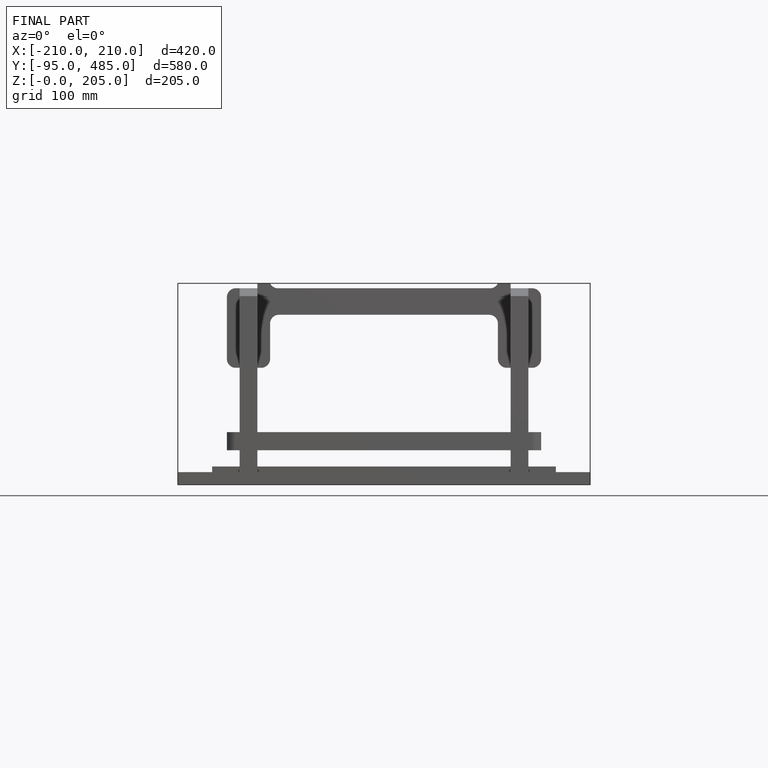
[diagram: finished part — front view with bounding-box wireframe]
